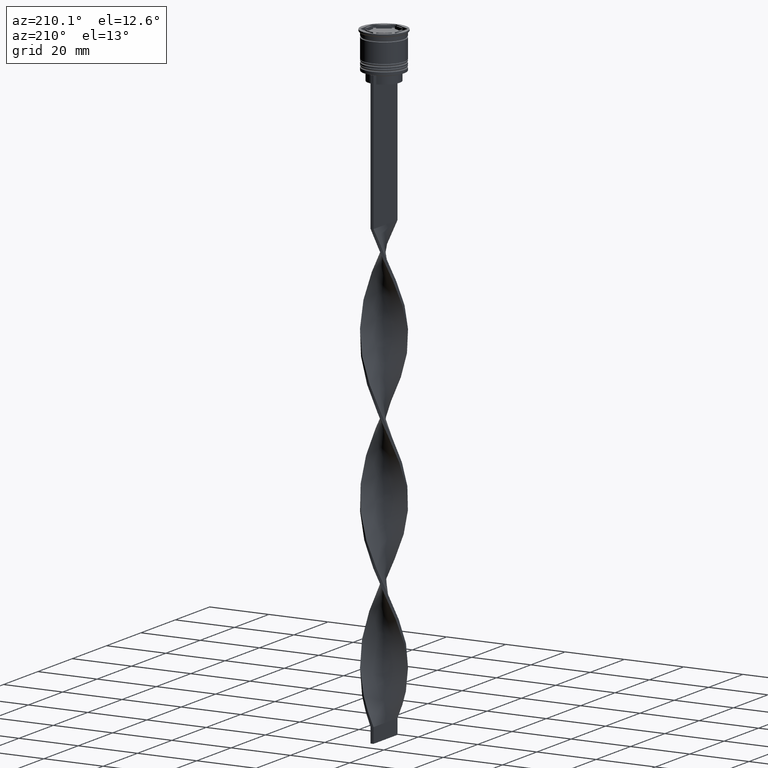
[diagram: clean part render]
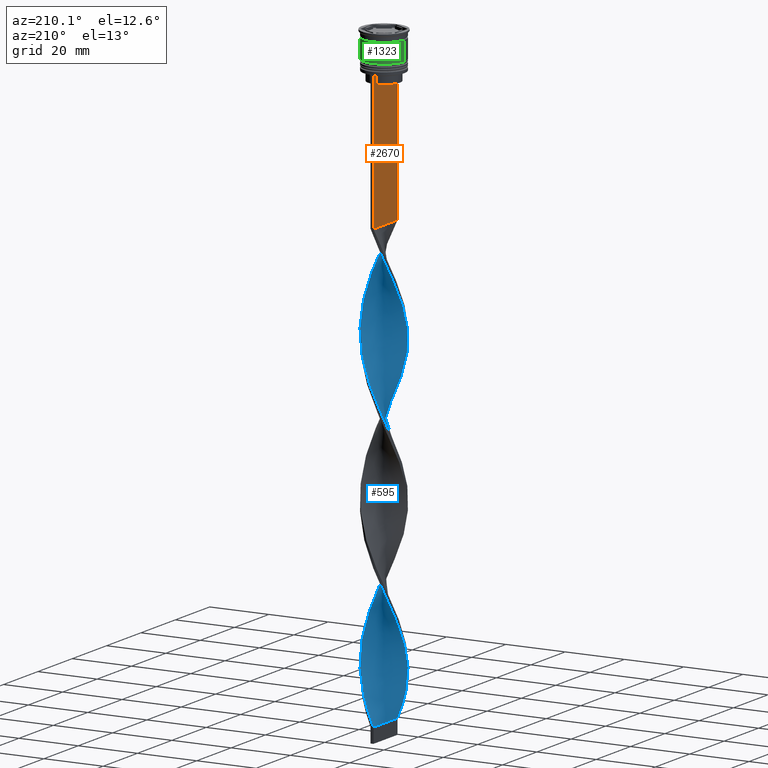
[diagram: same view with three faces highlighted in distinct colors, each labeled with its STEP entity id]
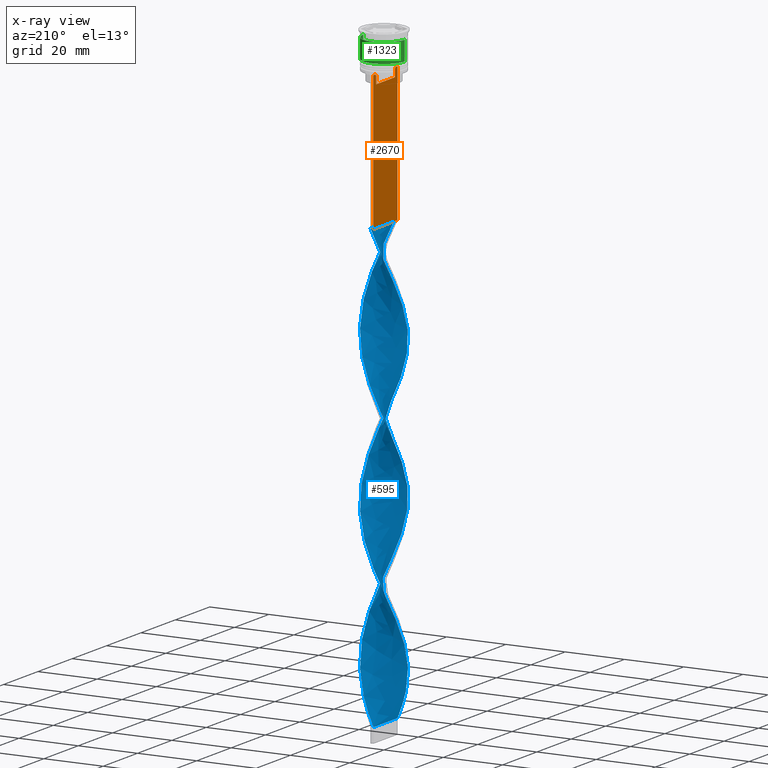
[diagram: x-ray of the same camera — body ghosted, the three highlighted faces saturated]
A machine part, auxiliary view with three faces highlighted in distinct colors.
The next image is the same camera in x-ray (body ghosted, the three faces saturated) — at least one of them is partly hidden behind the body in this view.
Their STEP definitions:

[orange] entity #2670 — the highlighted planar face has unit normal (-1, 0, 0).
#5 = VERTEX_POINT ( 'NONE', #324 ) ;
#35 = DIRECTION ( 'NONE',  ( 0.000000000000000000, -1.000000000000000000, 0.000000000000000000 ) ) ;
#157 = LINE ( 'NONE', #2244, #3776 ) ;
#160 = EDGE_CURVE ( 'NONE', #571, #2024, #1932, .T. ) ;
#200 = CARTESIAN_POINT ( 'NONE',  ( -0.5000000000000000000, 7.000000000000002665, 1.535668847618198329 ) ) ;
#212 = CARTESIAN_POINT ( 'NONE',  ( -0.5000000000000000000, 5.711478846560141598, -12.66669470477064685 ) ) ;
#227 = DIRECTION ( 'NONE',  ( -0.000000000000000000, -0.000000000000000000, 1.000000000000000000 ) ) ;
#240 = DIRECTION ( 'NONE',  ( 0.000000000000000000, 0.000000000000000000, -1.000000000000000000 ) ) ;
#252 = CARTESIAN_POINT ( 'NONE',  ( -0.5000000000000000000, 5.376802023508029826, -13.00000000000000178 ) ) ;
#263 = VECTOR ( 'NONE', #378, 1000.000000000000000 ) ;
#266 = VECTOR ( 'NONE', #967, 1000.000000000000000 ) ;
#324 = CARTESIAN_POINT ( 'NONE',  ( -0.5000000000000000000, -6.881860213634102053, -12.50000000000000000 ) ) ;
#339 = ORIENTED_EDGE ( 'NONE', *, *, #2539, .F. ) ;
#364 = CARTESIAN_POINT ( 'NONE',  ( -0.5000000000000000000, 5.376802023508029826, -15.50000000000000000 ) ) ;
#373 = EDGE_CURVE ( 'NONE', #1474, #5, #2917, .T. ) ;
#378 = DIRECTION ( 'NONE',  ( 0.000000000000000000, -1.000000000000000000, 0.000000000000000000 ) ) ;
#391 = VERTEX_POINT ( 'NONE', #1568 ) ;
#454 = VECTOR ( 'NONE', #2339, 1000.000000000000000 ) ;
#495 = DIRECTION ( 'NONE',  ( 0.000000000000000000, 0.000000000000000000, 1.000000000000000000 ) ) ;
#535 = ORIENTED_EDGE ( 'NONE', *, *, #1120, .F. ) ;
#538 = CARTESIAN_POINT ( 'NONE',  ( -0.5000000000000000000, 7.000000000000002665, -58.50000000000000000 ) ) ;
#553 = VERTEX_POINT ( 'NONE', #1690 ) ;
#571 = VERTEX_POINT ( 'NONE', #364 ) ;
#632 = VERTEX_POINT ( 'NONE', #2883 ) ;
#634 = VECTOR ( 'NONE', #2195, 1000.000000000000000 ) ;
#697 = VECTOR ( 'NONE', #832, 1000.000000000000000 ) ;
#783 = VERTEX_POINT ( 'NONE', #845 ) ;
#802 = ORIENTED_EDGE ( 'NONE', *, *, #3000, .T. ) ;
#832 = DIRECTION ( 'NONE',  ( 0.000000000000000000, 0.000000000000000000, -1.000000000000000000 ) ) ;
#845 = CARTESIAN_POINT ( 'NONE',  ( -0.5000000000000000000, -5.376802023508029826, -13.00000000000000178 ) ) ;
#886 = VECTOR ( 'NONE', #240, 1000.000000000000000 ) ;
#906 = VERTEX_POINT ( 'NONE', #1360 ) ;
#967 = DIRECTION ( 'NONE',  ( 0.000000000000000000, -1.000000000000000000, 0.000000000000000000 ) ) ;
#1050 = ORIENTED_EDGE ( 'NONE', *, *, #2321, .F. ) ;
#1120 = EDGE_CURVE ( 'NONE', #553, #571, #2978, .T. ) ;
#1145 = LINE ( 'NONE', #1700, #697 ) ;
#1229 = LINE ( 'NONE', #3319, #634 ) ;
#1255 = ORIENTED_EDGE ( 'NONE', *, *, #160, .F. ) ;
#1338 = B_SPLINE_CURVE_WITH_KNOTS ( 'NONE', 3,
 ( #2934, #1411, #1974, #2347 ),
 .UNSPECIFIED., .F., .F.,
 ( 4, 4 ),
 ( 0.02539176325380714666, 0.02610162431828674801 ),
 .UNSPECIFIED. ) ;
#1358 = EDGE_LOOP ( 'NONE', ( #1755, #1050, #2089, #802, #2921, #3114, #2586, #3629, #1380, #339, #1255, #535 ) ) ;
#1360 = CARTESIAN_POINT ( 'NONE',  ( -0.5000000000000000000, 5.878775382679629402, -12.50000000000000000 ) ) ;
#1380 = ORIENTED_EDGE ( 'NONE', *, *, #3005, .F. ) ;
#1389 = PLANE ( 'NONE',  #2581 ) ;
#1403 = EDGE_CURVE ( 'NONE', #3816, #2833, #1229, .T. ) ;
#1411 = CARTESIAN_POINT ( 'NONE',  ( -0.5000000000000000000, -5.544156999454441959, -12.83336396790503642 ) ) ;
#1474 = VERTEX_POINT ( 'NONE', #1655 ) ;
#1568 = CARTESIAN_POINT ( 'NONE',  ( -0.5000000000000000000, -6.999999999999997335, -58.50000000000000000 ) ) ;
#1573 = VECTOR ( 'NONE', #35, 1000.000000000000000 ) ;
#1655 = CARTESIAN_POINT ( 'NONE',  ( -0.5000000000000000000, -5.878775382679629402, -12.50000000000000000 ) ) ;
#1669 = CARTESIAN_POINT ( 'NONE',  ( -0.5000000000000000000, -5.376802023508029826, -15.50000000000000000 ) ) ;
#1683 = FACE_OUTER_BOUND ( 'NONE', #1358, .T. ) ;
#1690 = CARTESIAN_POINT ( 'NONE',  ( -0.5000000000000000000, 5.376802023508029826, -13.00000000000000178 ) ) ;
#1700 = CARTESIAN_POINT ( 'NONE',  ( -0.5000000000000000000, -6.999999999999997335, 1.535668847618198329 ) ) ;
#1747 = EDGE_CURVE ( 'NONE', #5, #632, #2544, .T. ) ;
#1755 = ORIENTED_EDGE ( 'NONE', *, *, #2066, .F. ) ;
#1848 = VECTOR ( 'NONE', #2053, 1000.000000000000000 ) ;
#1932 = LINE ( 'NONE', #3090, #2388 ) ;
#1974 = CARTESIAN_POINT ( 'NONE',  ( -0.5000000000000000000, -5.711478856069293286, -12.66669469529570335 ) ) ;
#1996 = CARTESIAN_POINT ( 'NONE',  ( -0.5000000000000000000, 7.000000000000002665, -12.50000000000000000 ) ) ;
#1998 = CARTESIAN_POINT ( 'NONE',  ( -0.5000000000000000000, -6.999999999999997335, 1.535668847618198329 ) ) ;
#2024 = VERTEX_POINT ( 'NONE', #1669 ) ;
#2053 = DIRECTION ( 'NONE',  ( 0.000000000000000000, 0.000000000000000000, -1.000000000000000000 ) ) ;
#2066 = EDGE_CURVE ( 'NONE', #906, #553, #3753, .T. ) ;
#2089 = ORIENTED_EDGE ( 'NONE', *, *, #1403, .F. ) ;
#2153 = CARTESIAN_POINT ( 'NONE',  ( -0.5000000000000000000, -6.999999999999997335, -12.50000000000000000 ) ) ;
#2195 = DIRECTION ( 'NONE',  ( 0.000000000000000000, -1.000000000000000000, 0.000000000000000000 ) ) ;
#2207 = LINE ( 'NONE', #2153, #266 ) ;
#2244 = CARTESIAN_POINT ( 'NONE',  ( -0.5000000000000000000, -5.376802023508029826, 0.000000000000000000 ) ) ;
#2321 = EDGE_CURVE ( 'NONE', #2833, #906, #2207, .T. ) ;
#2339 = DIRECTION ( 'NONE',  ( 0.000000000000000000, 1.000000000000000000, 0.000000000000000000 ) ) ;
#2347 = CARTESIAN_POINT ( 'NONE',  ( -0.5000000000000000000, -5.878775382679629402, -12.50000000000000000 ) ) ;
#2388 = VECTOR ( 'NONE', #3067, 1000.000000000000000 ) ;
#2483 = CARTESIAN_POINT ( 'NONE',  ( -0.5000000000000000000, -6.999999999999997335, -12.50000000000000000 ) ) ;
#2539 = EDGE_CURVE ( 'NONE', #2024, #783, #157, .T. ) ;
#2544 = LINE ( 'NONE', #2483, #263 ) ;
#2581 = AXIS2_PLACEMENT_3D ( 'NONE', #1998, #3187, #495 ) ;
#2586 = ORIENTED_EDGE ( 'NONE', *, *, #1747, .F. ) ;
#2670 = ADVANCED_FACE ( 'NONE', ( #1683 ), #1389, .T. ) ;
#2833 = VERTEX_POINT ( 'NONE', #3350 ) ;
#2868 = LINE ( 'NONE', #200, #1848 ) ;
#2883 = CARTESIAN_POINT ( 'NONE',  ( -0.5000000000000000000, -6.999999999999997335, -12.50000000000000000 ) ) ;
#2904 = CARTESIAN_POINT ( 'NONE',  ( -0.5000000000000000000, 5.878775382679629402, -12.50000000000000000 ) ) ;
#2917 = LINE ( 'NONE', #3381, #1573 ) ;
#2921 = ORIENTED_EDGE ( 'NONE', *, *, #3581, .F. ) ;
#2925 = CARTESIAN_POINT ( 'NONE',  ( -0.5000000000000000000, 5.544156989057553275, -12.83336397825725861 ) ) ;
#2934 = CARTESIAN_POINT ( 'NONE',  ( -0.5000000000000000000, -5.376802023508029826, -13.00000000000000178 ) ) ;
#2958 = EDGE_CURVE ( 'NONE', #632, #391, #1145, .T. ) ;
#2969 = VERTEX_POINT ( 'NONE', #538 ) ;
#2978 = LINE ( 'NONE', #3248, #886 ) ;
#3000 = EDGE_CURVE ( 'NONE', #3816, #2969, #2868, .T. ) ;
#3005 = EDGE_CURVE ( 'NONE', #783, #1474, #1338, .T. ) ;
#3067 = DIRECTION ( 'NONE',  ( 0.000000000000000000, -1.000000000000000000, 0.000000000000000000 ) ) ;
#3090 = CARTESIAN_POINT ( 'NONE',  ( -0.5000000000000000000, 5.400000000000003908, -15.50000000000000000 ) ) ;
#3114 = ORIENTED_EDGE ( 'NONE', *, *, #2958, .F. ) ;
#3187 = DIRECTION ( 'NONE',  ( -1.000000000000000000, 0.000000000000000000, 0.000000000000000000 ) ) ;
#3223 = LINE ( 'NONE', #3858, #454 ) ;
#3248 = CARTESIAN_POINT ( 'NONE',  ( -0.5000000000000000000, 5.376802023508029826, 0.000000000000000000 ) ) ;
#3319 = CARTESIAN_POINT ( 'NONE',  ( -0.5000000000000000000, -6.999999999999997335, -12.50000000000000000 ) ) ;
#3350 = CARTESIAN_POINT ( 'NONE',  ( -0.5000000000000000000, 6.881860213634102053, -12.50000000000000000 ) ) ;
#3381 = CARTESIAN_POINT ( 'NONE',  ( -0.5000000000000000000, -6.999999999999997335, -12.50000000000000000 ) ) ;
#3581 = EDGE_CURVE ( 'NONE', #391, #2969, #3223, .T. ) ;
#3629 = ORIENTED_EDGE ( 'NONE', *, *, #373, .F. ) ;
#3753 = B_SPLINE_CURVE_WITH_KNOTS ( 'NONE', 3,
 ( #2904, #212, #2925, #252 ),
 .UNSPECIFIED., .F., .F.,
 ( 4, 4 ),
 ( 0.01003009312103698807, 0.01073859663834952557 ),
 .UNSPECIFIED. ) ;
#3776 = VECTOR ( 'NONE', #227, 1000.000000000000000 ) ;
#3816 = VERTEX_POINT ( 'NONE', #1996 ) ;
#3858 = CARTESIAN_POINT ( 'NONE',  ( -0.5000000000000000000, -6.999999999999997335, -58.50000000000000000 ) ) ;

[blue] entity #595 — the highlighted face is a freeform B-spline surface patch.
#14 = CARTESIAN_POINT ( 'NONE',  ( -6.924005054333592923, 1.143745604390631554, -181.2058823529411598 ) ) ;
#19 = CARTESIAN_POINT ( 'NONE',  ( 4.346365046915572350, -5.509910242367894284, -119.8529411764705799 ) ) ;
#33 = CARTESIAN_POINT ( 'NONE',  ( 6.736663859307490121, 2.071291312187309774, -138.8431372549019045 ) ) ;
#36 = CARTESIAN_POINT ( 'NONE',  ( -4.110133708006299180, -5.688303868668623586, -198.7352941176470722 ) ) ;
#48 = CARTESIAN_POINT ( 'NONE',  ( 2.994927778012250297, 6.346684772736916891, -151.9901960784313530 ) ) ;
#51 = CARTESIAN_POINT ( 'NONE',  ( -2.994927778012249409, -6.346684772736916891, -201.6568627450980387 ) ) ;
#54 = CARTESIAN_POINT ( 'NONE',  ( 6.869610997245771955, -1.434728108918169154, -178.2843137254901933 ) ) ;
#84 = CARTESIAN_POINT ( 'NONE',  ( 2.406820825421677412, -6.624205700879067571, -162.2156862745098351 ) ) ;
#100 = CARTESIAN_POINT ( 'NONE',  ( 6.043273861597165286, 3.567750136113297277, -189.9705882352941160 ) ) ;
#105 = CARTESIAN_POINT ( 'NONE',  ( 0.5000000000000000000, 7.000000000000002665, -58.50000000000000000 ) ) ;
#107 = CARTESIAN_POINT ( 'NONE',  ( 6.043273861597165286, 3.567750136113297277, -189.9705882352941160 ) ) ;
#122 = CARTESIAN_POINT ( 'NONE',  ( -2.062455548607893263, 6.707926438924069146, -64.34313725490196134 ) ) ;
#125 = CARTESIAN_POINT ( 'NONE',  ( 7.016273413796890068, -0.1480114280955966977, -181.2058823529411598 ) ) ;
#159 = CARTESIAN_POINT ( 'NONE',  ( 6.595948007173689120, 2.396553752090988976, -187.0490196078431211 ) ) ;
#163 = CARTESIAN_POINT ( 'NONE',  ( 6.043273861597165286, 3.567750136113297277, -90.63725490196078738 ) ) ;
#167 = CARTESIAN_POINT ( 'NONE',  ( -6.241360575439927061, -3.273882377329165649, -92.09803921568628482 ) ) ;
#172 = CARTESIAN_POINT ( 'NONE',  ( 0.7947600748740405452, -6.972686456695599944, -111.0882352941176379 ) ) ;
#186 = CARTESIAN_POINT ( 'NONE',  ( -1.777733174557944107, -6.788936938879031047, -204.5784313725490335 ) ) ;
#194 = CARTESIAN_POINT ( 'NONE',  ( -6.373874598089927623, 3.007758344858555866, -77.49019607843136725 ) ) ;
#201 = CARTESIAN_POINT ( 'NONE',  ( 3.583034730602818296, -6.069163844594756441, -65.80392156862745878 ) ) ;
#209 = CARTESIAN_POINT ( 'NONE',  ( 4.637232685409776067, -5.307443892742482738, -68.72549019607842524 ) ) ;
#213 = CARTESIAN_POINT ( 'NONE',  ( -6.595948007173694450, 2.396553752090989864, -78.95098039215686470 ) ) ;
#219 = CARTESIAN_POINT ( 'NONE',  ( -2.062455548607893263, 6.707926438924069146, -64.34313725490196134 ) ) ;
#230 = CARTESIAN_POINT ( 'NONE',  ( -6.818021416257458611, -1.785349159323426305, -135.9215686274509665 ) ) ;
#237 = CARTESIAN_POINT ( 'NONE',  ( -2.994927778012249409, -6.346684772736916891, -102.3235294117646959 ) ) ;
#243 = CARTESIAN_POINT ( 'NONE',  ( 7.016273413796890068, -0.1480114280955966977, -81.87254901960783116 ) ) ;
#265 = CARTESIAN_POINT ( 'NONE',  ( -1.777733174557940998, 6.788936938879025718, -111.0882352941176379 ) ) ;
#270 = CARTESIAN_POINT ( 'NONE',  ( -5.533515242862683259, 4.364985304700184088, -121.3137254901960631 ) ) ;
#278 = CARTESIAN_POINT ( 'NONE',  ( -5.887437909151307380, -3.819433841014676201, -192.8921568627450824 ) ) ;
#285 = CARTESIAN_POINT ( 'NONE',  ( -7.002558135184063559, 0.7981649056490275340, -130.0784313725490335 ) ) ;
#290 = CARTESIAN_POINT ( 'NONE',  ( -5.712673125104408278, -4.127741927368044905, -141.7647058823529562 ) ) ;
#295 = CARTESIAN_POINT ( 'NONE',  ( 4.346365046915572350, -5.509910242367894284, -119.8529411764705799 ) ) ;
#297 = CARTESIAN_POINT ( 'NONE',  ( 7.029988692409724571, -0.5021420494578385796, -133.0000000000000000 ) ) ;
#310 = CARTESIAN_POINT ( 'NONE',  ( -1.777733174557944107, -6.788936938879031047, -105.2450980392156765 ) ) ;
#313 = CARTESIAN_POINT ( 'NONE',  ( -1.777733174557944107, -6.788936938879031047, -204.5784313725490335 ) ) ;
#328 = CARTESIAN_POINT ( 'NONE',  ( 7.002558135184068000, 0.7981649056490325300, -135.9215686274509665 ) ) ;
#331 = CARTESIAN_POINT ( 'NONE',  ( 1.148645523694208581, 6.953668176878989193, -156.3725490196078454 ) ) ;
#346 = CARTESIAN_POINT ( 'NONE',  ( 1.148645523694208581, 6.953668176878989193, -156.3725490196078454 ) ) ;
#350 = CARTESIAN_POINT ( 'NONE',  ( 0.5000000000000000000, 7.000000000000002665, -157.8333333333333144 ) ) ;
#353 = CARTESIAN_POINT ( 'NONE',  ( 2.684036471161911575, 6.516811787577952764, -200.1960784313725981 ) ) ;
#383 = CARTESIAN_POINT ( 'NONE',  ( 0.1486455236942071378, 7.046331823121014359, -206.0392156862745026 ) ) ;
#395 = CARTESIAN_POINT ( 'NONE',  ( 1.777733174557942775, -6.788936938879025718, -160.7549019607842808 ) ) ;
#402 = CARTESIAN_POINT ( 'NONE',  ( 1.440874626053875396, 6.899041090270179311, -203.1176470588235361 ) ) ;
#409 = CARTESIAN_POINT ( 'NONE',  ( 6.373874598089922294, 3.007758344858553201, -188.5098039215686185 ) ) ;
#430 = CARTESIAN_POINT ( 'NONE',  ( 3.583034730602818296, -6.069163844594756441, -165.1372549019608016 ) ) ;
#434 = CARTESIAN_POINT ( 'NONE',  ( 7.029988692409719242, 0.5021420494578368032, -83.33333333333332860 ) ) ;
#458 = CARTESIAN_POINT ( 'NONE',  ( 2.994927778012247632, -6.346684772736912450, -163.6764705882352757 ) ) ;
#461 = CARTESIAN_POINT ( 'NONE',  ( -2.994927778012248520, 6.346684772736911562, -114.0098039215686185 ) ) ;
#469 = CARTESIAN_POINT ( 'NONE',  ( -3.259916572276684299, 6.214736031545979422, -67.26470588235292780 ) ) ;
#478 = CARTESIAN_POINT ( 'NONE',  ( 3.259916572276681634, 6.214736031545974981, -198.7352941176470722 ) ) ;
#481 = CARTESIAN_POINT ( 'NONE',  ( 6.241360575439922620, -3.273882377329162985, -74.56862745098038658 ) ) ;
#491 = CARTESIAN_POINT ( 'NONE',  ( 5.085373964136229219, -4.836214598721332969, -70.18627450980390847 ) ) ;
#499 = CARTESIAN_POINT ( 'NONE',  ( 7.016273413796890068, -0.1480114280955966977, -81.87254901960783116 ) ) ;
#504 = CARTESIAN_POINT ( 'NONE',  ( -4.637232685409779620, -5.307443892742487179, -97.94117647058824616 ) ) ;
#517 = CARTESIAN_POINT ( 'NONE',  ( -0.4999999999999991673, 6.999999999999997335, -108.1666666666666572 ) ) ;
#526 = CARTESIAN_POINT ( 'NONE',  ( 1.148645523694208137, -6.953668176878982088, -159.2941176470588118 ) ) ;
#534 = CARTESIAN_POINT ( 'NONE',  ( -5.533515242862685923, -4.364985304700188529, -95.01960784313726549 ) ) ;
#539 = CARTESIAN_POINT ( 'NONE',  ( 3.835796673391455247, 5.912660275513998975, -97.94117647058824616 ) ) ;
#545 = CARTESIAN_POINT ( 'NONE',  ( 5.533515242862682371, -4.364985304700184976, -170.9803921568627629 ) ) ;
#556 = CARTESIAN_POINT ( 'NONE',  ( 0.7947600748740411003, 6.972686456695594615, -105.2450980392156765 ) ) ;
#563 = CARTESIAN_POINT ( 'NONE',  ( -6.043273861597169727, 3.567750136113300385, -175.3627450980391984 ) ) ;
#567 = CARTESIAN_POINT ( 'NONE',  ( -0.1486455236942086366, 7.046331823121017912, -159.2941176470588118 ) ) ;
#583 = CARTESIAN_POINT ( 'NONE',  ( 2.406820825421677412, -6.624205700879066683, -162.2156862745098351 ) ) ;
#588 = CARTESIAN_POINT ( 'NONE',  ( 3.835796673391457468, -5.912660275514004304, -118.3921568627451109 ) ) ;
#591 = CARTESIAN_POINT ( 'NONE',  ( -3.583034730602821405, -6.069163844594760882, -200.1960784313725696 ) ) ;
#592 = ORIENTED_EDGE ( 'NONE', *, *, #3830, .T. ) ;
#595 = ADVANCED_FACE ( 'NONE', ( #1885 ), #1860, .T. ) ;
#597 = CARTESIAN_POINT ( 'NONE',  ( -6.736663859307483904, 2.071291312187310663, -127.1568627450980244 ) ) ;
#609 = CARTESIAN_POINT ( 'NONE',  ( 6.489012217373707259, 2.672586844758239710, -140.3039215686274588 ) ) ;
#614 = VERTEX_POINT ( 'NONE', #731 ) ;
#620 = CARTESIAN_POINT ( 'NONE',  ( -6.373874598089927623, 3.007758344858555866, -176.8235294117647243 ) ) ;
#624 = CARTESIAN_POINT ( 'NONE',  ( 1.777733174557941886, 6.788936938879031047, -154.9117647058823479 ) ) ;
#639 = CARTESIAN_POINT ( 'NONE',  ( 7.029988692409723683, -0.5021420494578385796, -133.0000000000000000 ) ) ;
#645 = CARTESIAN_POINT ( 'NONE',  ( 6.924005054333593812, -1.143745604390631110, -131.5392156862745310 ) ) ;
#688 = CARTESIAN_POINT ( 'NONE',  ( -3.259916572276685187, -6.214736031545972317, -149.0686274509803866 ) ) ;
#711 = CARTESIAN_POINT ( 'NONE',  ( 5.533515242862682371, -4.364985304700184976, -71.64705882352943433 ) ) ;
#724 = CARTESIAN_POINT ( 'NONE',  ( -1.440874626053876062, -6.899041090270178422, -153.4509803921568789 ) ) ;
#727 = CARTESIAN_POINT ( 'NONE',  ( 2.062455548607891487, 6.707926438924064705, -102.3235294117646959 ) ) ;
#729 = CARTESIAN_POINT ( 'NONE',  ( -0.1486455236942086366, 7.046331823121017912, -59.96078431372549744 ) ) ;
#731 = CARTESIAN_POINT ( 'NONE',  ( 0.5000000000000000000, 7.000000000000002665, -58.50000000000000000 ) ) ;
#737 = CARTESIAN_POINT ( 'NONE',  ( -6.736663859307489233, -2.071291312187311551, -188.5098039215686185 ) ) ;
#744 = CARTESIAN_POINT ( 'NONE',  ( 4.110133708006296516, -5.688303868668619145, -166.5980392156862706 ) ) ;
#747 = CARTESIAN_POINT ( 'NONE',  ( -1.777733174557940998, 6.788936938879025718, -111.0882352941176379 ) ) ;
#753 = CARTESIAN_POINT ( 'NONE',  ( -6.373874598089927623, 3.007758344858555866, -77.49019607843138147 ) ) ;
#772 = CARTESIAN_POINT ( 'NONE',  ( -4.856933420439682791, -5.107160209221785152, -144.6862745098039227 ) ) ;
#778 = CARTESIAN_POINT ( 'NONE',  ( -6.869610997245777284, -1.434728108918171596, -87.71568627450979250 ) ) ;
#781 = CARTESIAN_POINT ( 'NONE',  ( 2.684036471161912019, -6.516811787577958981, -115.4705882352941018 ) ) ;
#786 = CARTESIAN_POINT ( 'NONE',  ( 0.1486455236942071378, 7.046331823121014359, -106.7058823529411882 ) ) ;
#801 = CARTESIAN_POINT ( 'NONE',  ( -6.595948007173694450, 2.396553752090989864, -78.95098039215686470 ) ) ;
#806 = CARTESIAN_POINT ( 'NONE',  ( 5.533515242862682371, -4.364985304700184976, -71.64705882352942012 ) ) ;
#813 = CARTESIAN_POINT ( 'NONE',  ( 0.5000000000000000000, -6.999999999999997335, -157.8333333333333144 ) ) ;
#824 = CARTESIAN_POINT ( 'NONE',  ( -5.085373964136233660, -4.836214598721335634, -96.48039215686274872 ) ) ;
#838 = CARTESIAN_POINT ( 'NONE',  ( -0.1486455236942079983, -7.046331823121014359, -156.3725490196078454 ) ) ;
#842 = CARTESIAN_POINT ( 'NONE',  ( -7.002558135184068000, -0.7981649056490316418, -86.25490196078432348 ) ) ;
#851 = CARTESIAN_POINT ( 'NONE',  ( 0.5000000000000000000, -6.999999999999997335, -58.50000000000000000 ) ) ;
#859 = CARTESIAN_POINT ( 'NONE',  ( -4.346365046915572350, 5.509910242367894284, -169.5196078431372371 ) ) ;
#874 = CARTESIAN_POINT ( 'NONE',  ( -1.440874626053876062, -6.899041090270178422, -153.4509803921568789 ) ) ;
#878 = CARTESIAN_POINT ( 'NONE',  ( -0.7947600748740419885, 6.972686456695599944, -160.7549019607842808 ) ) ;
#883 = CARTESIAN_POINT ( 'NONE',  ( -0.7947600748740419885, 6.972686456695599944, -160.7549019607842808 ) ) ;
#892 = CARTESIAN_POINT ( 'NONE',  ( -5.085373964136229219, 4.836214598721332969, -119.8529411764705799 ) ) ;
#902 = CARTESIAN_POINT ( 'NONE',  ( 6.043273861597170615, -3.567750136113298609, -125.6960784313725412 ) ) ;
#904 = CARTESIAN_POINT ( 'NONE',  ( -6.595948007173694450, 2.396553752090989864, -178.2843137254901933 ) ) ;
#916 = CARTESIAN_POINT ( 'NONE',  ( -7.016273413796896286, -0.1480114280955961703, -184.1274509803921546 ) ) ;
#918 = CARTESIAN_POINT ( 'NONE',  ( -5.284803272772050420, 4.617451068294916361, -172.4411764705882035 ) ) ;
#921 = CARTESIAN_POINT ( 'NONE',  ( -0.4999999999999996669, 2.333333333333331261, -207.5000000000000000 ) ) ;
#933 = CARTESIAN_POINT ( 'NONE',  ( 3.259916572276685187, -6.214736031545978534, -116.9313725490195992 ) ) ;
#935 = CARTESIAN_POINT ( 'NONE',  ( 5.887437909151308268, 3.819433841014675313, -143.2254901960784537 ) ) ;
#950 = CARTESIAN_POINT ( 'NONE',  ( -6.489012217373707259, -2.672586844758237490, -189.9705882352941160 ) ) ;
#974 = CARTESIAN_POINT ( 'NONE',  ( 0.7947600748740411003, 6.972686456695594615, -204.5784313725490335 ) ) ;
#981 = ORIENTED_EDGE ( 'NONE', *, *, #1395, .F. ) ;
#985 = CARTESIAN_POINT ( 'NONE',  ( -0.4999999999999991673, 6.999999999999997335, -207.5000000000000000 ) ) ;
#1004 = CARTESIAN_POINT ( 'NONE',  ( 2.684036471161911575, 6.516811787577952764, -200.1960784313725696 ) ) ;
#1018 = CARTESIAN_POINT ( 'NONE',  ( -3.583034730602820961, -6.069163844594760882, -200.1960784313725981 ) ) ;
#1023 = CARTESIAN_POINT ( 'NONE',  ( -6.595948007173689120, -2.396553752090988088, -137.3823529411764639 ) ) ;
#1025 = CARTESIAN_POINT ( 'NONE',  ( 4.110133708006296516, -5.688303868668619145, -67.26470588235292780 ) ) ;
#1029 = CARTESIAN_POINT ( 'NONE',  ( -0.4999999999999991673, 6.999999999999997335, -207.5000000000000000 ) ) ;
#1031 = B_SPLINE_CURVE_WITH_KNOTS ( 'NONE', 3,
 ( #2419, #3613, #921, #2127 ),
 .UNSPECIFIED., .F., .F.,
 ( 4, 4 ),
 ( 0.000000000000000000, 1.000000000000000000 ),
 .UNSPECIFIED. ) ;
#1034 =( BOUNDED_CURVE ( )  B_SPLINE_CURVE ( 2, ( #2910, #1721, #2864, #3488, #219, #1429, #469, #1464, #2341, #2031, #1381, #2612, #2050, #194, #801, #2302, #1114, #2948, #2285, #3508, #2569, #1739, #2653, #2317, #2362, #534, #824, #3227, #1697, #2929, #237, #3469, #3860, #3555, #1445, #3162, #172, #3771, #1138, #781, #2885, #1990, #19, #2674, #2065, #2432, #2416, #2730, #1240, #1183, #645, #297, #3894, #1523, #3877, #1504, #609, #1832, #935, #3024, #1200, #2140, #2398, #2378, #1819, #3047, #624, #331, #350, #567, #883, #3571, #3625, #3333, #3265, #3610, #3317, #2086, #918, #1542, #1783, #2124, #904, #3592, #1855, #2746, #2991, #2108, #2973, #2690, #1253, #1557, #278, #3006, #1225, #3287, #36, #591, #51, #3303, #313, #2446, #3644 ),
 .UNSPECIFIED., .F., .T. ) 
 B_SPLINE_CURVE_WITH_KNOTS ( ( 3, 2, 2, 2, 2, 2, 2, 2, 2, 2, 2, 2, 2, 2, 2, 2, 2, 2, 2, 2, 2, 2, 2, 2, 2, 2, 2, 2, 2, 2, 2, 2, 2, 2, 2, 2, 2, 2, 2, 2, 2, 2, 2, 2, 2, 2, 2, 2, 2, 2, 2, 3 ),
 ( 0.000000000000000000, 0.01470588235294117453, 0.02941176470588234906, 0.04411764705882353227, 0.05882352941176469813, 0.07352941176470588480, 0.08823529411764706454, 0.1029411764705882443, 0.1176470588235293963, 0.1323529411764705899, 0.1470588235294117696, 0.1617647058823529493, 0.1764705882352941291, 0.1911764705882352811, 0.2058823529411764885, 0.2205882352941176405, 0.2352941176470587925, 0.2500000000000000000, 0.2647058823529411797, 0.2794117647058823595, 0.2941176470588235392, 0.3088235294117647189, 0.3235294117647058987, 0.3382352941176470229, 0.3529411764705882582, 0.3676470588235294379, 0.3823529411764705621, 0.3970588235294117418, 0.4117647058823529771, 0.4264705882352941013, 0.4411764705882352811, 0.4558823529411764608, 0.4705882352941175850, 0.4852941176470588203, 0.5000000000000000000, 0.5147058823529411242, 0.5294117647058823595, 0.5441176470588234837, 0.5588235294117647189, 0.5735294117647058432, 0.5882352941176470784, 0.6029411764705882026, 0.6176470588235294379, 0.6323529411764705621, 0.6470588235294117974, 0.6617647058823529216, 0.6764705882352940458, 0.6911764705882351700, 0.7058823529411765163, 0.7205882352941176405, 0.7352941176470588758, 0.7500000000000000000 ),
 .UNSPECIFIED. ) 
 CURVE ( )  GEOMETRIC_REPRESENTATION_ITEM ( )  RATIONAL_B_SPLINE_CURVE ( ( 1.000000000000000000, 0.9957341762950344677, 1.000000000000000000, 0.9957341762950344677, 1.000000000000000000, 0.9957341762950344677, 1.000000000000000000, 0.9957341762950344677, 1.000000000000000000, 0.9957341762950344677, 1.000000000000000000, 0.9957341762950344677, 1.000000000000000000, 0.9957341762950344677, 1.000000000000000000, 0.9957341762950344677, 1.000000000000000000, 0.9957341762950344677, 1.000000000000000000, 0.9957341762950344677, 1.000000000000000000, 0.9957341762950344677, 1.000000000000000000, 0.9957341762950344677, 1.000000000000000000, 0.9957341762950344677, 1.000000000000000000, 0.9957341762950344677, 1.000000000000000000, 0.9957341762950344677, 1.000000000000000000, 0.9957341762950344677, 1.000000000000000000, 0.9957341762950344677, 1.000000000000000000, 0.9957341762950344677, 1.000000000000000000, 0.9957341762950344677, 1.000000000000000000, 0.9957341762950344677, 1.000000000000000000, 0.9957341762950344677, 1.000000000000000000, 0.9957341762950344677, 1.000000000000000000, 0.9957341762950344677, 1.000000000000000000, 0.9957341762950344677, 1.000000000000000000, 0.9957341762950344677, 1.000000000000000000, 0.9957341762950344677, 1.000000000000000000, 0.9957341762950344677, 1.000000000000000000, 0.9957341762950344677, 1.000000000000000000, 0.9957341762950344677, 1.000000000000000000, 0.9957341762950344677, 1.000000000000000000, 0.9957341762950344677, 1.000000000000000000, 0.9957341762950344677, 1.000000000000000000, 0.9957341762950344677, 1.000000000000000000, 0.9957341762950344677, 1.000000000000000000, 0.9957341762950344677, 1.000000000000000000, 0.9957341762950344677, 1.000000000000000000, 0.9957341762950344677, 1.000000000000000000, 0.9957341762950344677, 1.000000000000000000, 0.9957341762950344677, 1.000000000000000000, 0.9957341762950344677, 1.000000000000000000, 0.9957341762950344677, 1.000000000000000000, 0.9957341762950344677, 1.000000000000000000, 0.9957341762950344677, 1.000000000000000000, 0.9957341762950344677, 1.000000000000000000, 0.9957341762950344677, 1.000000000000000000, 0.9957341762950344677, 1.000000000000000000, 0.9957341762950344677, 1.000000000000000000, 0.9957341762950344677, 1.000000000000000000, 0.9957341762950344677, 1.000000000000000000, 0.9957341762950344677, 1.000000000000000000, 0.9957341762950344677, 1.000000000000000000 ) ) 
 REPRESENTATION_ITEM ( '' )  );
#1042 = CARTESIAN_POINT ( 'NONE',  ( 4.346365046915569685, 5.509910242367890731, -195.8137254901960773 ) ) ;
#1045 = CARTESIAN_POINT ( 'NONE',  ( 0.7947600748740411003, 6.972686456695594615, -105.2450980392156765 ) ) ;
#1049 = CARTESIAN_POINT ( 'NONE',  ( -3.259916572276684299, 6.214736031545979422, -67.26470588235292780 ) ) ;
#1057 = CARTESIAN_POINT ( 'NONE',  ( -5.533515242862685035, -4.364985304700188529, -194.3529411764705799 ) ) ;
#1063 = CARTESIAN_POINT ( 'NONE',  ( 7.002558135184063559, -0.7981649056490300875, -179.7450980392157476 ) ) ;
#1069 = CARTESIAN_POINT ( 'NONE',  ( -5.533515242862685035, -4.364985304700188529, -95.01960784313725128 ) ) ;
#1090 = CARTESIAN_POINT ( 'NONE',  ( 5.284803272772047755, 4.617451068294911920, -93.55882352941176805 ) ) ;
#1101 = CARTESIAN_POINT ( 'NONE',  ( -2.994927778012249409, -6.346684772736916891, -201.6568627450980387 ) ) ;
#1103 = CARTESIAN_POINT ( 'NONE',  ( 6.869610997245771955, -1.434728108918169154, -78.95098039215686470 ) ) ;
#1109 = CARTESIAN_POINT ( 'NONE',  ( 5.887437909151302939, -3.819433841014673536, -73.10784313725488914 ) ) ;
#1111 = CARTESIAN_POINT ( 'NONE',  ( -7.016273413796896286, -0.1480114280955961703, -84.79411764705882604 ) ) ;
#1114 = CARTESIAN_POINT ( 'NONE',  ( -6.924005054333592923, 1.143745604390631554, -81.87254901960783116 ) ) ;
#1128 = CARTESIAN_POINT ( 'NONE',  ( -7.016273413796890956, 0.1480114280955958372, -131.5392156862745310 ) ) ;
#1133 = CARTESIAN_POINT ( 'NONE',  ( -5.712673125104412719, 4.127741927368047570, -74.56862745098038658 ) ) ;
#1138 = CARTESIAN_POINT ( 'NONE',  ( 2.062455548607894595, -6.707926438924068258, -114.0098039215686185 ) ) ;
#1146 = CARTESIAN_POINT ( 'NONE',  ( 3.259916572276681634, 6.214736031545974981, -99.40196078431372939 ) ) ;
#1156 = CARTESIAN_POINT ( 'NONE',  ( -7.029988692409719242, -0.5021420494578359150, -133.0000000000000000 ) ) ;
#1169 = CARTESIAN_POINT ( 'NONE',  ( 2.994927778012247632, -6.346684772736912450, -64.34313725490196134 ) ) ;
#1175 = CARTESIAN_POINT ( 'NONE',  ( -6.373874598089923182, -3.007758344858550981, -138.8431372549019045 ) ) ;
#1176 =( BOUNDED_CURVE ( )  B_SPLINE_CURVE ( 2, ( #851, #3865, #3494, #3801, #1169, #201, #3560, #2054, #491, #806, #3232, #1792, #2072, #1412, #1103, #1450, #243, #3272, #3250, #3185, #2982, #3207, #2573, #2599, #2307, #2012, #3843, #539, #1146, #3473, #1727, #2348, #556, #786, #517, #1769, #265, #1473, #3578, #3293, #3883, #1494, #892, #1809, #2680, #1189, #2385, #597, #2096, #285, #2515, #3170, #1348, #3717, #1023, #1303, #2228, #3412, #1899, #772, #1664, #1685, #688, #2246, #1287, #724, #1369, #3093, #2559, #1934, #395, #84, #458, #430, #744, #3149, #1604, #3760, #2208, #1918, #3125, #2188, #2790, #1063, #1956, #1980, #3109, #3737, #159, #409, #100, #1643, #2270, #2538, #1042, #3458, #478, #1004, #1621, #2478, #3674, #2493, #985 ),
 .UNSPECIFIED., .F., .T. ) 
 B_SPLINE_CURVE_WITH_KNOTS ( ( 3, 2, 2, 2, 2, 2, 2, 2, 2, 2, 2, 2, 2, 2, 2, 2, 2, 2, 2, 2, 2, 2, 2, 2, 2, 2, 2, 2, 2, 2, 2, 2, 2, 2, 2, 2, 2, 2, 2, 2, 2, 2, 2, 2, 2, 2, 2, 2, 2, 2, 2, 3 ),
 ( 0.000000000000000000, 0.01470588235294117453, 0.02941176470588234906, 0.04411764705882353227, 0.05882352941176469813, 0.07352941176470588480, 0.08823529411764706454, 0.1029411764705882443, 0.1176470588235293963, 0.1323529411764705899, 0.1470588235294117696, 0.1617647058823529493, 0.1764705882352941291, 0.1911764705882352811, 0.2058823529411764885, 0.2205882352941176405, 0.2352941176470587925, 0.2500000000000000000, 0.2647058823529411797, 0.2794117647058823595, 0.2941176470588235392, 0.3088235294117647189, 0.3235294117647058987, 0.3382352941176470229, 0.3529411764705882582, 0.3676470588235294379, 0.3823529411764705621, 0.3970588235294117418, 0.4117647058823529771, 0.4264705882352941013, 0.4411764705882352811, 0.4558823529411764608, 0.4705882352941175850, 0.4852941176470588203, 0.5000000000000000000, 0.5147058823529411242, 0.5294117647058823595, 0.5441176470588234837, 0.5588235294117647189, 0.5735294117647058432, 0.5882352941176470784, 0.6029411764705882026, 0.6176470588235294379, 0.6323529411764705621, 0.6470588235294117974, 0.6617647058823529216, 0.6764705882352940458, 0.6911764705882351700, 0.7058823529411765163, 0.7205882352941176405, 0.7352941176470588758, 0.7500000000000000000 ),
 .UNSPECIFIED. ) 
 CURVE ( )  GEOMETRIC_REPRESENTATION_ITEM ( )  RATIONAL_B_SPLINE_CURVE ( ( 1.000000000000000000, 0.9957341762950344677, 1.000000000000000000, 0.9957341762950344677, 1.000000000000000000, 0.9957341762950344677, 1.000000000000000000, 0.9957341762950344677, 1.000000000000000000, 0.9957341762950344677, 1.000000000000000000, 0.9957341762950344677, 1.000000000000000000, 0.9957341762950344677, 1.000000000000000000, 0.9957341762950344677, 1.000000000000000000, 0.9957341762950344677, 1.000000000000000000, 0.9957341762950344677, 1.000000000000000000, 0.9957341762950344677, 1.000000000000000000, 0.9957341762950344677, 1.000000000000000000, 0.9957341762950344677, 1.000000000000000000, 0.9957341762950344677, 1.000000000000000000, 0.9957341762950344677, 1.000000000000000000, 0.9957341762950344677, 1.000000000000000000, 0.9957341762950344677, 1.000000000000000000, 0.9957341762950344677, 1.000000000000000000, 0.9957341762950344677, 1.000000000000000000, 0.9957341762950344677, 1.000000000000000000, 0.9957341762950344677, 1.000000000000000000, 0.9957341762950344677, 1.000000000000000000, 0.9957341762950344677, 1.000000000000000000, 0.9957341762950344677, 1.000000000000000000, 0.9957341762950344677, 1.000000000000000000, 0.9957341762950344677, 1.000000000000000000, 0.9957341762950344677, 1.000000000000000000, 0.9957341762950344677, 1.000000000000000000, 0.9957341762950344677, 1.000000000000000000, 0.9957341762950344677, 1.000000000000000000, 0.9957341762950344677, 1.000000000000000000, 0.9957341762950344677, 1.000000000000000000, 0.9957341762950344677, 1.000000000000000000, 0.9957341762950344677, 1.000000000000000000, 0.9957341762950344677, 1.000000000000000000, 0.9957341762950344677, 1.000000000000000000, 0.9957341762950344677, 1.000000000000000000, 0.9957341762950344677, 1.000000000000000000, 0.9957341762950344677, 1.000000000000000000, 0.9957341762950344677, 1.000000000000000000, 0.9957341762950344677, 1.000000000000000000, 0.9957341762950344677, 1.000000000000000000, 0.9957341762950344677, 1.000000000000000000, 0.9957341762950344677, 1.000000000000000000, 0.9957341762950344677, 1.000000000000000000, 0.9957341762950344677, 1.000000000000000000, 0.9957341762950344677, 1.000000000000000000, 0.9957341762950344677, 1.000000000000000000, 0.9957341762950344677, 1.000000000000000000, 0.9957341762950344677, 1.000000000000000000, 0.9957341762950344677, 1.000000000000000000 ) ) 
 REPRESENTATION_ITEM ( '' )  );
#1179 = CARTESIAN_POINT ( 'NONE',  ( 5.284803272772050420, -4.617451068294917249, -122.7745098039215605 ) ) ;
#1183 = CARTESIAN_POINT ( 'NONE',  ( 6.818021416257465717, -1.785349159323423862, -130.0784313725490335 ) ) ;
#1189 = CARTESIAN_POINT ( 'NONE',  ( -6.241360575439922620, 3.273882377329164317, -124.2352941176470580 ) ) ;
#1200 = CARTESIAN_POINT ( 'NONE',  ( 5.085373964136231884, 4.836214598721338298, -146.1470588235294201 ) ) ;
#1222 = CARTESIAN_POINT ( 'NONE',  ( -7.029988692409723683, 0.5021420494578376914, -182.6666666666666572 ) ) ;
#1225 = CARTESIAN_POINT ( 'NONE',  ( -5.085373964136233660, -4.836214598721335634, -195.8137254901960773 ) ) ;
#1237 = CARTESIAN_POINT ( 'NONE',  ( 6.595948007173694450, -2.396553752090992084, -128.6176470588235361 ) ) ;
#1240 = CARTESIAN_POINT ( 'NONE',  ( 6.595948007173694450, -2.396553752090992084, -128.6176470588235361 ) ) ;
#1253 = CARTESIAN_POINT ( 'NONE',  ( -6.489012217373707259, -2.672586844758237490, -189.9705882352941160 ) ) ;
#1287 = CARTESIAN_POINT ( 'NONE',  ( -2.062455548607892375, -6.707926438924064705, -151.9901960784313530 ) ) ;
#1303 = CARTESIAN_POINT ( 'NONE',  ( -6.373874598089923182, -3.007758344858550981, -138.8431372549019329 ) ) ;
#1328 = CARTESIAN_POINT ( 'NONE',  ( 1.148645523694208137, -6.953668176878982088, -59.96078431372549744 ) ) ;
#1334 = CARTESIAN_POINT ( 'NONE',  ( 6.595948007173689120, 2.396553752090988976, -187.0490196078431211 ) ) ;
#1348 = CARTESIAN_POINT ( 'NONE',  ( -6.924005054333588483, -1.143745604390627779, -134.4607843137254974 ) ) ;
#1351 = CARTESIAN_POINT ( 'NONE',  ( 5.712673125104408278, 4.127741927368045793, -92.09803921568628482 ) ) ;
#1369 = CARTESIAN_POINT ( 'NONE',  ( -0.7947600748740389909, -6.972686456695594615, -154.9117647058823479 ) ) ;
#1372 = CARTESIAN_POINT ( 'NONE',  ( 5.085373964136229219, -4.836214598721332969, -70.18627450980390847 ) ) ;
#1376 = CARTESIAN_POINT ( 'NONE',  ( -5.887437909151307380, -3.819433841014676201, -93.55882352941176805 ) ) ;
#1381 = CARTESIAN_POINT ( 'NONE',  ( -5.284803272772050420, 4.617451068294916361, -73.10784313725488914 ) ) ;
#1395 = EDGE_CURVE ( 'NONE', #2863, #1903, #1031, .T. ) ;
#1396 = CARTESIAN_POINT ( 'NONE',  ( 6.489012217373702818, -2.672586844758235713, -76.02941176470586981 ) ) ;
#1412 = CARTESIAN_POINT ( 'NONE',  ( 6.736663859307483904, -2.071291312187310663, -77.49019607843136725 ) ) ;
#1420 = CARTESIAN_POINT ( 'NONE',  ( 6.924005054333588483, 1.143745604390630222, -84.79411764705882604 ) ) ;
#1425 = CARTESIAN_POINT ( 'NONE',  ( -4.110133708006299180, -5.688303868668623586, -99.40196078431372939 ) ) ;
#1429 = CARTESIAN_POINT ( 'NONE',  ( -2.684036471161912907, 6.516811787577958981, -65.80392156862745878 ) ) ;
#1445 = CARTESIAN_POINT ( 'NONE',  ( -0.5000000000000008882, -7.000000000000002665, -108.1666666666666572 ) ) ;
#1450 = CARTESIAN_POINT ( 'NONE',  ( 7.002558135184063559, -0.7981649056490300875, -80.41176470588234793 ) ) ;
#1457 = CARTESIAN_POINT ( 'NONE',  ( -6.241360575439921732, 3.273882377329163873, -124.2352941176470580 ) ) ;
#1464 = CARTESIAN_POINT ( 'NONE',  ( -3.835796673391458800, 5.912660275514003416, -68.72549019607842524 ) ) ;
#1473 = CARTESIAN_POINT ( 'NONE',  ( -2.406820825421677412, 6.624205700879067571, -112.5490196078431495 ) ) ;
#1481 = CARTESIAN_POINT ( 'NONE',  ( -3.835796673391456579, -5.912660275513998975, -147.6078431372548891 ) ) ;
#1485 = CARTESIAN_POINT ( 'NONE',  ( -1.148645523694207693, -6.953668176878989193, -106.7058823529412024 ) ) ;
#1494 = CARTESIAN_POINT ( 'NONE',  ( -4.637232685409775179, 5.307443892742482738, -118.3921568627451109 ) ) ;
#1497 = CARTESIAN_POINT ( 'NONE',  ( 2.994927778012247632, -6.346684772736912450, -163.6764705882352757 ) ) ;
#1500 = CARTESIAN_POINT ( 'NONE',  ( 6.924005054333593812, -1.143745604390631110, -131.5392156862745310 ) ) ;
#1504 = CARTESIAN_POINT ( 'NONE',  ( 6.736663859307490121, 2.071291312187309774, -138.8431372549019329 ) ) ;
#1519 = CARTESIAN_POINT ( 'NONE',  ( -0.1486455236942086366, 7.046331823121017912, -159.2941176470588118 ) ) ;
#1523 = CARTESIAN_POINT ( 'NONE',  ( 7.002558135184068888, 0.7981649056490325300, -135.9215686274509665 ) ) ;
#1538 = CARTESIAN_POINT ( 'NONE',  ( 2.062455548607894595, -6.707926438924068258, -114.0098039215686185 ) ) ;
#1542 = CARTESIAN_POINT ( 'NONE',  ( -5.712673125104412719, 4.127741927368047570, -173.9019607843137294 ) ) ;
#1554 = CARTESIAN_POINT ( 'NONE',  ( -3.835796673391458800, 5.912660275514003416, -168.0588235294117680 ) ) ;
#1557 = CARTESIAN_POINT ( 'NONE',  ( -6.241360575439927949, -3.273882377329165649, -191.4313725490196134 ) ) ;
#1559 = CARTESIAN_POINT ( 'NONE',  ( 5.284803272772047755, 4.617451068294911920, -192.8921568627450824 ) ) ;
#1572 = CARTESIAN_POINT ( 'NONE',  ( 4.856933420439684568, 5.107160209221783376, -194.3529411764705799 ) ) ;
#1594 = CARTESIAN_POINT ( 'NONE',  ( 6.818021416257458611, 1.785349159323425638, -185.5882352941176237 ) ) ;
#1604 = CARTESIAN_POINT ( 'NONE',  ( 5.085373964136229219, -4.836214598721332969, -169.5196078431372371 ) ) ;
#1612 = CARTESIAN_POINT ( 'NONE',  ( 6.373874598089922294, 3.007758344858553201, -188.5098039215686185 ) ) ;
#1616 = CARTESIAN_POINT ( 'NONE',  ( -6.241360575439927061, -3.273882377329165649, -191.4313725490196134 ) ) ;
#1621 = CARTESIAN_POINT ( 'NONE',  ( 2.062455548607891487, 6.707926438924064705, -201.6568627450980387 ) ) ;
#1624 = CARTESIAN_POINT ( 'NONE',  ( 0.5000000000000000000, -6.999999999999997335, -58.50000000000000000 ) ) ;
#1643 = CARTESIAN_POINT ( 'NONE',  ( 5.712673125104408278, 4.127741927368044905, -191.4313725490196134 ) ) ;
#1646 = CARTESIAN_POINT ( 'NONE',  ( -0.5000000000000008882, -7.000000000000002665, -207.5000000000000000 ) ) ;
#1664 = CARTESIAN_POINT ( 'NONE',  ( -4.346365046915567909, -5.509910242367891620, -146.1470588235294201 ) ) ;
#1666 = CARTESIAN_POINT ( 'NONE',  ( -3.583034730602816964, 6.069163844594756441, -115.4705882352940876 ) ) ;
#1679 = EDGE_CURVE ( 'NONE', #614, #2863, #1034, .T. ) ;
#1685 = CARTESIAN_POINT ( 'NONE',  ( -3.835796673391456135, -5.912660275513998087, -147.6078431372548891 ) ) ;
#1697 = CARTESIAN_POINT ( 'NONE',  ( -4.110133708006299180, -5.688303868668623586, -99.40196078431372939 ) ) ;
#1721 = CARTESIAN_POINT ( 'NONE',  ( -0.1486455236942086366, 7.046331823121017912, -59.96078431372549034 ) ) ;
#1727 = CARTESIAN_POINT ( 'NONE',  ( 2.062455548607891487, 6.707926438924064705, -102.3235294117646959 ) ) ;
#1739 = CARTESIAN_POINT ( 'NONE',  ( -6.736663859307489233, -2.071291312187311551, -89.17647058823528994 ) ) ;
#1754 = CARTESIAN_POINT ( 'NONE',  ( 5.887437909151302939, -3.819433841014673536, -172.4411764705882035 ) ) ;
#1769 = CARTESIAN_POINT ( 'NONE',  ( -1.148645523694208581, 6.953668176878982088, -109.6274509803921404 ) ) ;
#1779 = CARTESIAN_POINT ( 'NONE',  ( 6.241360575439927061, 3.273882377329165205, -141.7647058823529562 ) ) ;
#1783 = CARTESIAN_POINT ( 'NONE',  ( -6.043273861597169727, 3.567750136113300385, -175.3627450980391984 ) ) ;
#1792 = CARTESIAN_POINT ( 'NONE',  ( 6.241360575439923508, -3.273882377329162985, -74.56862745098038658 ) ) ;
#1797 = CARTESIAN_POINT ( 'NONE',  ( -6.595948007173689120, -2.396553752090988088, -137.3823529411764639 ) ) ;
#1800 = CARTESIAN_POINT ( 'NONE',  ( 5.712673125104411831, -4.127741927368048458, -124.2352941176470580 ) ) ;
#1809 = CARTESIAN_POINT ( 'NONE',  ( -5.533515242862683259, 4.364985304700184088, -121.3137254901960773 ) ) ;
#1817 = CARTESIAN_POINT ( 'NONE',  ( 4.856933420439689009, -5.107160209221786040, -121.3137254901960631 ) ) ;
#1819 = CARTESIAN_POINT ( 'NONE',  ( 2.994927778012250297, 6.346684772736916891, -151.9901960784313530 ) ) ;
#1822 = DIRECTION ( 'NONE',  ( 0.000000000000000000, 1.000000000000000000, 0.000000000000000000 ) ) ;
#1828 = CARTESIAN_POINT ( 'NONE',  ( -7.002558135184068000, -0.7981649056490316418, -185.5882352941176237 ) ) ;
#1832 = CARTESIAN_POINT ( 'NONE',  ( 6.241360575439927949, 3.273882377329165205, -141.7647058823529562 ) ) ;
#1852 = CARTESIAN_POINT ( 'NONE',  ( 7.016273413796896286, 0.1480114280955937833, -134.4607843137254974 ) ) ;
#1855 = CARTESIAN_POINT ( 'NONE',  ( -6.924005054333592923, 1.143745604390631554, -181.2058823529411598 ) ) ;
#1860 =( BOUNDED_SURFACE ( )  B_SPLINE_SURFACE ( 1, 2, ( 
 ( #105, #729, #2781, #2813, #122, #2524, #1049, #3662, #3076, #2858, #3439, #1133, #2906, #753, #213, #3195, #2280, #3532, #1111, #842, #778, #1986, #1965, #167, #1376, #1069, #3175, #504, #1425, #3503, #2968, #3622, #310, #1485, #2359, #2728, #2706, #3019, #1538, #2671, #933, #588, #295, #1817, #1179, #1800, #902, #2122, #1237, #3315, #1500, #639, #1852, #328, #2687, #33, #2428, #1779, #2743, #2374, #2136, #3608, #3003, #3569, #48, #3551, #3042, #346, #3261, #1519, #878, #3890, #2414, #2394, #3588, #1554, #859, #3282, #2106, #2062, #563, #620, #3301, #2083, #14, #1222, #916, #1828, #3426, #737, #950, #1616, #3777, #1057, #2801, #3183, #2508, #1018, #1101, #3840, #186, #3192, #1646 ),
 ( #1624, #1328, #2902, #3479, #1983, #3720, #1025, #209, #1372, #711, #1109, #481, #1396, #3807, #1920, #2582, #499, #434, #1420, #2606, #2274, #3111, #163, #1351, #1090, #2542, #1960, #3740, #3415, #3786, #727, #1937, #1045, #2854, #2249, #3434, #747, #3153, #461, #1666, #2561, #3827, #2667, #270, #3566, #1457, #2987, #3257, #2645, #3852, #1128, #1156, #2354, #230, #1797, #1175, #2332, #290, #2370, #3216, #3548, #1481, #3526, #3870, #2625, #874, #2043, #838, #813, #526, #2077, #583, #1497, #2313, #3499, #3238, #2942, #545, #1754, #2815, #3703, #3115, #54, #2468, #125, #3367, #3648, #1594, #1334, #1612, #107, #2526, #1559, #1572, #3353, #3402, #1925, #353, #3386, #402, #974, #383, #1029 ) ),
 .UNSPECIFIED., .F., .F., .T. ) 
 B_SPLINE_SURFACE_WITH_KNOTS ( ( 2, 2 ),
 ( 3, 2, 2, 2, 2, 2, 2, 2, 2, 2, 2, 2, 2, 2, 2, 2, 2, 2, 2, 2, 2, 2, 2, 2, 2, 2, 2, 2, 2, 2, 2, 2, 2, 2, 2, 2, 2, 2, 2, 2, 2, 2, 2, 2, 2, 2, 2, 2, 2, 2, 2, 3 ),
 ( 0.000000000000000000, 1.000000000000000000 ),
 ( 0.000000000000000000, 0.01470588235294117627, 0.02941176470588235253, 0.04411764705882353227, 0.05882352941176470507, 0.07352941176470588480, 0.08823529411764706454, 0.1029411764705882304, 0.1176470588235294101, 0.1323529411764705899, 0.1470588235294117696, 0.1617647058823529493, 0.1764705882352941291, 0.1911764705882352811, 0.2058823529411764608, 0.2205882352941176405, 0.2352941176470588203, 0.2500000000000000000, 0.2647058823529411797, 0.2794117647058823595, 0.2941176470588235392, 0.3088235294117647189, 0.3235294117647058987, 0.3382352941176470784, 0.3529411764705882582, 0.3676470588235294379, 0.3823529411764705621, 0.3970588235294117418, 0.4117647058823529216, 0.4264705882352941013, 0.4411764705882352811, 0.4558823529411764608, 0.4705882352941176405, 0.4852941176470588203, 0.5000000000000000000, 0.5147058823529411242, 0.5294117647058823595, 0.5441176470588234837, 0.5588235294117647189, 0.5735294117647058432, 0.5882352941176470784, 0.6029411764705882026, 0.6176470588235294379, 0.6323529411764705621, 0.6470588235294117974, 0.6617647058823529216, 0.6764705882352941568, 0.6911764705882352811, 0.7058823529411765163, 0.7205882352941176405, 0.7352941176470588758, 0.7500000000000000000 ),
 .UNSPECIFIED. ) 
 GEOMETRIC_REPRESENTATION_ITEM ( )  RATIONAL_B_SPLINE_SURFACE ( (
 ( 1.000000000000000000, 0.9957341762950344677, 1.000000000000000000, 0.9957341762950344677, 1.000000000000000000, 0.9957341762950344677, 1.000000000000000000, 0.9957341762950344677, 1.000000000000000000, 0.9957341762950344677, 1.000000000000000000, 0.9957341762950344677, 1.000000000000000000, 0.9957341762950344677, 1.000000000000000000, 0.9957341762950344677, 1.000000000000000000, 0.9957341762950344677, 1.000000000000000000, 0.9957341762950344677, 1.000000000000000000, 0.9957341762950344677, 1.000000000000000000, 0.9957341762950344677, 1.000000000000000000, 0.9957341762950344677, 1.000000000000000000, 0.9957341762950344677, 1.000000000000000000, 0.9957341762950344677, 1.000000000000000000, 0.9957341762950344677, 1.000000000000000000, 0.9957341762950344677, 1.000000000000000000, 0.9957341762950344677, 1.000000000000000000, 0.9957341762950344677, 1.000000000000000000, 0.9957341762950344677, 1.000000000000000000, 0.9957341762950344677, 1.000000000000000000, 0.9957341762950344677, 1.000000000000000000, 0.9957341762950344677, 1.000000000000000000, 0.9957341762950344677, 1.000000000000000000, 0.9957341762950344677, 1.000000000000000000, 0.9957341762950344677, 1.000000000000000000, 0.9957341762950344677, 1.000000000000000000, 0.9957341762950344677, 1.000000000000000000, 0.9957341762950344677, 1.000000000000000000, 0.9957341762950344677, 1.000000000000000000, 0.9957341762950344677, 1.000000000000000000, 0.9957341762950344677, 1.000000000000000000, 0.9957341762950344677, 1.000000000000000000, 0.9957341762950344677, 1.000000000000000000, 0.9957341762950344677, 1.000000000000000000, 0.9957341762950344677, 1.000000000000000000, 0.9957341762950344677, 1.000000000000000000, 0.9957341762950344677, 1.000000000000000000, 0.9957341762950344677, 1.000000000000000000, 0.9957341762950344677, 1.000000000000000000, 0.9957341762950344677, 1.000000000000000000, 0.9957341762950344677, 1.000000000000000000, 0.9957341762950344677, 1.000000000000000000, 0.9957341762950344677, 1.000000000000000000, 0.9957341762950344677, 1.000000000000000000, 0.9957341762950344677, 1.000000000000000000, 0.9957341762950344677, 1.000000000000000000, 0.9957341762950344677, 1.000000000000000000, 0.9957341762950344677, 1.000000000000000000, 0.9957341762950344677, 1.000000000000000000, 0.9957341762950344677, 1.000000000000000000),
 ( 1.000000000000000000, 0.9957341762950344677, 1.000000000000000000, 0.9957341762950344677, 1.000000000000000000, 0.9957341762950344677, 1.000000000000000000, 0.9957341762950344677, 1.000000000000000000, 0.9957341762950344677, 1.000000000000000000, 0.9957341762950344677, 1.000000000000000000, 0.9957341762950344677, 1.000000000000000000, 0.9957341762950344677, 1.000000000000000000, 0.9957341762950344677, 1.000000000000000000, 0.9957341762950344677, 1.000000000000000000, 0.9957341762950344677, 1.000000000000000000, 0.9957341762950344677, 1.000000000000000000, 0.9957341762950344677, 1.000000000000000000, 0.9957341762950344677, 1.000000000000000000, 0.9957341762950344677, 1.000000000000000000, 0.9957341762950344677, 1.000000000000000000, 0.9957341762950344677, 1.000000000000000000, 0.9957341762950344677, 1.000000000000000000, 0.9957341762950344677, 1.000000000000000000, 0.9957341762950344677, 1.000000000000000000, 0.9957341762950344677, 1.000000000000000000, 0.9957341762950344677, 1.000000000000000000, 0.9957341762950344677, 1.000000000000000000, 0.9957341762950344677, 1.000000000000000000, 0.9957341762950344677, 1.000000000000000000, 0.9957341762950344677, 1.000000000000000000, 0.9957341762950344677, 1.000000000000000000, 0.9957341762950344677, 1.000000000000000000, 0.9957341762950344677, 1.000000000000000000, 0.9957341762950344677, 1.000000000000000000, 0.9957341762950344677, 1.000000000000000000, 0.9957341762950344677, 1.000000000000000000, 0.9957341762950344677, 1.000000000000000000, 0.9957341762950344677, 1.000000000000000000, 0.9957341762950344677, 1.000000000000000000, 0.9957341762950344677, 1.000000000000000000, 0.9957341762950344677, 1.000000000000000000, 0.9957341762950344677, 1.000000000000000000, 0.9957341762950344677, 1.000000000000000000, 0.9957341762950344677, 1.000000000000000000, 0.9957341762950344677, 1.000000000000000000, 0.9957341762950344677, 1.000000000000000000, 0.9957341762950344677, 1.000000000000000000, 0.9957341762950344677, 1.000000000000000000, 0.9957341762950344677, 1.000000000000000000, 0.9957341762950344677, 1.000000000000000000, 0.9957341762950344677, 1.000000000000000000, 0.9957341762950344677, 1.000000000000000000, 0.9957341762950344677, 1.000000000000000000, 0.9957341762950344677, 1.000000000000000000, 0.9957341762950344677, 1.000000000000000000) ) ) 
 REPRESENTATION_ITEM ( '' )  SURFACE ( )  );
#1885 = FACE_OUTER_BOUND ( 'NONE', #2281, .T. ) ;
#1899 = CARTESIAN_POINT ( 'NONE',  ( -5.284803272772048643, -4.617451068294911032, -143.2254901960784537 ) ) ;
#1903 = VERTEX_POINT ( 'NONE', #3383 ) ;
#1918 = CARTESIAN_POINT ( 'NONE',  ( 6.241360575439923508, -3.273882377329162985, -173.9019607843137294 ) ) ;
#1920 = CARTESIAN_POINT ( 'NONE',  ( 6.869610997245771955, -1.434728108918169154, -78.95098039215686470 ) ) ;
#1925 = CARTESIAN_POINT ( 'NONE',  ( 3.259916572276681634, 6.214736031545974981, -198.7352941176470722 ) ) ;
#1934 = CARTESIAN_POINT ( 'NONE',  ( 1.148645523694208137, -6.953668176878982088, -159.2941176470588118 ) ) ;
#1937 = CARTESIAN_POINT ( 'NONE',  ( 1.440874626053875396, 6.899041090270179311, -103.7843137254901933 ) ) ;
#1956 = CARTESIAN_POINT ( 'NONE',  ( 7.016273413796890068, -0.1480114280955966977, -181.2058823529411598 ) ) ;
#1960 = CARTESIAN_POINT ( 'NONE',  ( 4.346365046915569685, 5.509910242367890731, -96.48039215686274872 ) ) ;
#1965 = CARTESIAN_POINT ( 'NONE',  ( -6.489012217373707259, -2.672586844758237490, -90.63725490196078738 ) ) ;
#1980 = CARTESIAN_POINT ( 'NONE',  ( 7.029988692409719242, 0.5021420494578368032, -182.6666666666666856 ) ) ;
#1983 = CARTESIAN_POINT ( 'NONE',  ( 2.994927778012247632, -6.346684772736912450, -64.34313725490196134 ) ) ;
#1986 = CARTESIAN_POINT ( 'NONE',  ( -6.736663859307489233, -2.071291312187311551, -89.17647058823527573 ) ) ;
#1990 = CARTESIAN_POINT ( 'NONE',  ( 3.835796673391457023, -5.912660275514004304, -118.3921568627451109 ) ) ;
#2012 = CARTESIAN_POINT ( 'NONE',  ( 4.856933420439684568, 5.107160209221783376, -95.01960784313726549 ) ) ;
#2031 = CARTESIAN_POINT ( 'NONE',  ( -4.856933420439688120, 5.107160209221786928, -71.64705882352942012 ) ) ;
#2043 = CARTESIAN_POINT ( 'NONE',  ( -0.7947600748740389909, -6.972686456695594615, -154.9117647058823479 ) ) ;
#2050 = CARTESIAN_POINT ( 'NONE',  ( -6.043273861597169727, 3.567750136113300385, -76.02941176470586981 ) ) ;
#2054 = CARTESIAN_POINT ( 'NONE',  ( 4.637232685409776067, -5.307443892742482738, -68.72549019607842524 ) ) ;
#2062 = CARTESIAN_POINT ( 'NONE',  ( -5.712673125104412719, 4.127741927368047570, -173.9019607843137294 ) ) ;
#2065 = CARTESIAN_POINT ( 'NONE',  ( 5.284803272772050420, -4.617451068294917249, -122.7745098039215605 ) ) ;
#2072 = CARTESIAN_POINT ( 'NONE',  ( 6.489012217373702818, -2.672586844758235713, -76.02941176470586981 ) ) ;
#2077 = CARTESIAN_POINT ( 'NONE',  ( 1.777733174557942775, -6.788936938879025718, -160.7549019607842808 ) ) ;
#2083 = CARTESIAN_POINT ( 'NONE',  ( -6.818021416257463940, 1.785349159323425861, -179.7450980392157192 ) ) ;
#2086 = CARTESIAN_POINT ( 'NONE',  ( -4.856933420439688120, 5.107160209221786928, -170.9803921568627629 ) ) ;
#2096 = CARTESIAN_POINT ( 'NONE',  ( -6.869610997245771955, 1.434728108918171596, -128.6176470588235361 ) ) ;
#2106 = CARTESIAN_POINT ( 'NONE',  ( -5.284803272772050420, 4.617451068294916361, -172.4411764705882035 ) ) ;
#2108 = CARTESIAN_POINT ( 'NONE',  ( -7.002558135184068888, -0.7981649056490316418, -185.5882352941176237 ) ) ;
#2122 = CARTESIAN_POINT ( 'NONE',  ( 6.373874598089927623, -3.007758344858554977, -127.1568627450980102 ) ) ;
#2124 = CARTESIAN_POINT ( 'NONE',  ( -6.373874598089927623, 3.007758344858555866, -176.8235294117647243 ) ) ;
#2127 = CARTESIAN_POINT ( 'NONE',  ( -0.4999999999999991673, 6.999999999999997335, -207.5000000000000000 ) ) ;
#2136 = CARTESIAN_POINT ( 'NONE',  ( 5.085373964136231884, 4.836214598721338298, -146.1470588235294201 ) ) ;
#2140 = CARTESIAN_POINT ( 'NONE',  ( 4.637232685409779620, 5.307443892742486291, -147.6078431372548891 ) ) ;
#2188 = CARTESIAN_POINT ( 'NONE',  ( 6.736663859307483904, -2.071291312187310663, -176.8235294117647243 ) ) ;
#2208 = CARTESIAN_POINT ( 'NONE',  ( 5.887437909151302939, -3.819433841014673536, -172.4411764705882035 ) ) ;
#2228 = CARTESIAN_POINT ( 'NONE',  ( -6.043273861597164398, -3.567750136113299941, -140.3039215686274588 ) ) ;
#2246 = CARTESIAN_POINT ( 'NONE',  ( -2.684036471161909354, -6.516811787577954540, -150.5294117647058840 ) ) ;
#2249 = CARTESIAN_POINT ( 'NONE',  ( -0.4999999999999991673, 6.999999999999997335, -108.1666666666666572 ) ) ;
#2270 = CARTESIAN_POINT ( 'NONE',  ( 5.284803272772047755, 4.617451068294911920, -192.8921568627450824 ) ) ;
#2274 = CARTESIAN_POINT ( 'NONE',  ( 6.595948007173689120, 2.396553752090988976, -87.71568627450979250 ) ) ;
#2280 = CARTESIAN_POINT ( 'NONE',  ( -6.924005054333592923, 1.143745604390631554, -81.87254901960783116 ) ) ;
#2281 = EDGE_LOOP ( 'NONE', ( #2497, #592, #981, #2331 ) ) ;
#2285 = CARTESIAN_POINT ( 'NONE',  ( -7.016273413796896286, -0.1480114280955961703, -84.79411764705882604 ) ) ;
#2302 = CARTESIAN_POINT ( 'NONE',  ( -6.818021416257463940, 1.785349159323425861, -80.41176470588234793 ) ) ;
#2307 = CARTESIAN_POINT ( 'NONE',  ( 5.284803272772047755, 4.617451068294911920, -93.55882352941176805 ) ) ;
#2313 = CARTESIAN_POINT ( 'NONE',  ( 3.583034730602817852, -6.069163844594756441, -165.1372549019608016 ) ) ;
#2317 = CARTESIAN_POINT ( 'NONE',  ( -6.241360575439927949, -3.273882377329165649, -92.09803921568628482 ) ) ;
#2331 = ORIENTED_EDGE ( 'NONE', *, *, #1679, .F. ) ;
#2332 = CARTESIAN_POINT ( 'NONE',  ( -6.043273861597164398, -3.567750136113299941, -140.3039215686274588 ) ) ;
#2341 = CARTESIAN_POINT ( 'NONE',  ( -4.346365046915572350, 5.509910242367894284, -70.18627450980390847 ) ) ;
#2348 = CARTESIAN_POINT ( 'NONE',  ( 1.440874626053875174, 6.899041090270179311, -103.7843137254901791 ) ) ;
#2354 = CARTESIAN_POINT ( 'NONE',  ( -6.924005054333588483, -1.143745604390627779, -134.4607843137254974 ) ) ;
#2359 = CARTESIAN_POINT ( 'NONE',  ( -0.5000000000000008882, -7.000000000000002665, -108.1666666666666572 ) ) ;
#2362 = CARTESIAN_POINT ( 'NONE',  ( -5.887437909151307380, -3.819433841014676201, -93.55882352941176805 ) ) ;
#2370 = CARTESIAN_POINT ( 'NONE',  ( -5.284803272772048643, -4.617451068294911032, -143.2254901960784537 ) ) ;
#2374 = CARTESIAN_POINT ( 'NONE',  ( 5.533515242862684147, 4.364985304700190305, -144.6862745098039227 ) ) ;
#2378 = CARTESIAN_POINT ( 'NONE',  ( 3.583034730602819629, 6.069163844594762658, -150.5294117647058840 ) ) ;
#2385 = CARTESIAN_POINT ( 'NONE',  ( -6.489012217373703706, 2.672586844758233937, -125.6960784313725412 ) ) ;
#2394 = CARTESIAN_POINT ( 'NONE',  ( -2.684036471161912907, 6.516811787577958981, -165.1372549019608016 ) ) ;
#2398 = CARTESIAN_POINT ( 'NONE',  ( 4.110133708006300957, 5.688303868668621810, -149.0686274509803866 ) ) ;
#2414 = CARTESIAN_POINT ( 'NONE',  ( -2.062455548607893263, 6.707926438924069146, -163.6764705882352757 ) ) ;
#2416 = CARTESIAN_POINT ( 'NONE',  ( 6.043273861597170615, -3.567750136113298609, -125.6960784313725412 ) ) ;
#2419 = CARTESIAN_POINT ( 'NONE',  ( -0.5000000000000008882, -7.000000000000002665, -207.5000000000000000 ) ) ;
#2428 = CARTESIAN_POINT ( 'NONE',  ( 6.489012217373707259, 2.672586844758239710, -140.3039215686274588 ) ) ;
#2432 = CARTESIAN_POINT ( 'NONE',  ( 5.712673125104411831, -4.127741927368048458, -124.2352941176470580 ) ) ;
#2446 = CARTESIAN_POINT ( 'NONE',  ( -1.148645523694207693, -6.953668176878989193, -206.0392156862745026 ) ) ;
#2465 = CARTESIAN_POINT ( 'NONE',  ( -0.5000000000000008882, -7.000000000000002665, -207.5000000000000000 ) ) ;
#2468 = CARTESIAN_POINT ( 'NONE',  ( 7.002558135184062671, -0.7981649056490300875, -179.7450980392157192 ) ) ;
#2478 = CARTESIAN_POINT ( 'NONE',  ( 1.440874626053875174, 6.899041090270179311, -203.1176470588235361 ) ) ;
#2493 = CARTESIAN_POINT ( 'NONE',  ( 0.1486455236942071378, 7.046331823121014359, -206.0392156862745026 ) ) ;
#2497 = ORIENTED_EDGE ( 'NONE', *, *, #3091, .F. ) ;
#2508 = CARTESIAN_POINT ( 'NONE',  ( -4.110133708006299180, -5.688303868668623586, -198.7352941176470722 ) ) ;
#2515 = CARTESIAN_POINT ( 'NONE',  ( -7.016273413796890956, 0.1480114280955958372, -131.5392156862745310 ) ) ;
#2524 = CARTESIAN_POINT ( 'NONE',  ( -2.684036471161912907, 6.516811787577958981, -65.80392156862747299 ) ) ;
#2526 = CARTESIAN_POINT ( 'NONE',  ( 5.712673125104408278, 4.127741927368045793, -191.4313725490196134 ) ) ;
#2538 = CARTESIAN_POINT ( 'NONE',  ( 4.856933420439684568, 5.107160209221783376, -194.3529411764705799 ) ) ;
#2542 = CARTESIAN_POINT ( 'NONE',  ( 4.856933420439684568, 5.107160209221783376, -95.01960784313725128 ) ) ;
#2550 = VERTEX_POINT ( 'NONE', #3822 ) ;
#2559 = CARTESIAN_POINT ( 'NONE',  ( 0.5000000000000000000, -6.999999999999997335, -157.8333333333333144 ) ) ;
#2561 = CARTESIAN_POINT ( 'NONE',  ( -4.110133708006297404, 5.688303868668618257, -116.9313725490195992 ) ) ;
#2569 = CARTESIAN_POINT ( 'NONE',  ( -6.869610997245777284, -1.434728108918171596, -87.71568627450979250 ) ) ;
#2573 = CARTESIAN_POINT ( 'NONE',  ( 6.043273861597165286, 3.567750136113297277, -90.63725490196078738 ) ) ;
#2582 = CARTESIAN_POINT ( 'NONE',  ( 7.002558135184062671, -0.7981649056490300875, -80.41176470588234793 ) ) ;
#2599 = CARTESIAN_POINT ( 'NONE',  ( 5.712673125104408278, 4.127741927368044905, -92.09803921568628482 ) ) ;
#2606 = CARTESIAN_POINT ( 'NONE',  ( 6.818021416257458611, 1.785349159323425638, -86.25490196078432348 ) ) ;
#2612 = CARTESIAN_POINT ( 'NONE',  ( -5.712673125104412719, 4.127741927368047570, -74.56862745098038658 ) ) ;
#2617 = LINE ( 'NONE', #3514, #2831 ) ;
#2625 = CARTESIAN_POINT ( 'NONE',  ( -2.062455548607892375, -6.707926438924064705, -151.9901960784313530 ) ) ;
#2645 = CARTESIAN_POINT ( 'NONE',  ( -6.869610997245771955, 1.434728108918171596, -128.6176470588235361 ) ) ;
#2653 = CARTESIAN_POINT ( 'NONE',  ( -6.489012217373707259, -2.672586844758237490, -90.63725490196078738 ) ) ;
#2667 = CARTESIAN_POINT ( 'NONE',  ( -5.085373964136229219, 4.836214598721332969, -119.8529411764705799 ) ) ;
#2671 = CARTESIAN_POINT ( 'NONE',  ( 2.684036471161912019, -6.516811787577958981, -115.4705882352940876 ) ) ;
#2674 = CARTESIAN_POINT ( 'NONE',  ( 4.856933420439689009, -5.107160209221786040, -121.3137254901960773 ) ) ;
#2680 = CARTESIAN_POINT ( 'NONE',  ( -5.887437909151302051, 3.819433841014674424, -122.7745098039215605 ) ) ;
#2687 = CARTESIAN_POINT ( 'NONE',  ( 6.869610997245777284, 1.434728108918170708, -137.3823529411764639 ) ) ;
#2690 = CARTESIAN_POINT ( 'NONE',  ( -6.736663859307489233, -2.071291312187311551, -188.5098039215686185 ) ) ;
#2706 = CARTESIAN_POINT ( 'NONE',  ( 0.7947600748740405452, -6.972686456695599944, -111.0882352941176379 ) ) ;
#2728 = CARTESIAN_POINT ( 'NONE',  ( 0.1486455236942091918, -7.046331823121017912, -109.6274509803921546 ) ) ;
#2730 = CARTESIAN_POINT ( 'NONE',  ( 6.373874598089927623, -3.007758344858554977, -127.1568627450980244 ) ) ;
#2743 = CARTESIAN_POINT ( 'NONE',  ( 5.887437909151308268, 3.819433841014675313, -143.2254901960784537 ) ) ;
#2746 = CARTESIAN_POINT ( 'NONE',  ( -7.029988692409724571, 0.5021420494578376914, -182.6666666666666856 ) ) ;
#2781 = CARTESIAN_POINT ( 'NONE',  ( -0.7947600748740419885, 6.972686456695599944, -61.42156862745097357 ) ) ;
#2790 = CARTESIAN_POINT ( 'NONE',  ( 6.869610997245771955, -1.434728108918169154, -178.2843137254901933 ) ) ;
#2801 = CARTESIAN_POINT ( 'NONE',  ( -5.085373964136233660, -4.836214598721335634, -195.8137254901960773 ) ) ;
#2813 = CARTESIAN_POINT ( 'NONE',  ( -1.440874626053875396, 6.899041090270183751, -62.88235294117647811 ) ) ;
#2815 = CARTESIAN_POINT ( 'NONE',  ( 6.241360575439922620, -3.273882377329162985, -173.9019607843137294 ) ) ;
#2831 = VECTOR ( 'NONE', #1822, 1000.000000000000000 ) ;
#2854 = CARTESIAN_POINT ( 'NONE',  ( 0.1486455236942071378, 7.046331823121014359, -106.7058823529412024 ) ) ;
#2858 = CARTESIAN_POINT ( 'NONE',  ( -4.856933420439688120, 5.107160209221786928, -71.64705882352943433 ) ) ;
#2863 = VERTEX_POINT ( 'NONE', #2465 ) ;
#2864 = CARTESIAN_POINT ( 'NONE',  ( -0.7947600748740419885, 6.972686456695599944, -61.42156862745097357 ) ) ;
#2885 = CARTESIAN_POINT ( 'NONE',  ( 3.259916572276685187, -6.214736031545978534, -116.9313725490195992 ) ) ;
#2902 = CARTESIAN_POINT ( 'NONE',  ( 1.777733174557942775, -6.788936938879025718, -61.42156862745097357 ) ) ;
#2906 = CARTESIAN_POINT ( 'NONE',  ( -6.043273861597169727, 3.567750136113300385, -76.02941176470586981 ) ) ;
#2910 = CARTESIAN_POINT ( 'NONE',  ( 0.5000000000000000000, 7.000000000000002665, -58.50000000000000000 ) ) ;
#2929 = CARTESIAN_POINT ( 'NONE',  ( -3.583034730602821405, -6.069163844594760882, -100.8627450980392126 ) ) ;
#2942 = CARTESIAN_POINT ( 'NONE',  ( 5.085373964136229219, -4.836214598721332969, -169.5196078431372371 ) ) ;
#2948 = CARTESIAN_POINT ( 'NONE',  ( -7.029988692409724571, 0.5021420494578376914, -83.33333333333332860 ) ) ;
#2968 = CARTESIAN_POINT ( 'NONE',  ( -2.994927778012249409, -6.346684772736916891, -102.3235294117646959 ) ) ;
#2973 = CARTESIAN_POINT ( 'NONE',  ( -6.869610997245777284, -1.434728108918171596, -187.0490196078431211 ) ) ;
#2982 = CARTESIAN_POINT ( 'NONE',  ( 6.595948007173689120, 2.396553752090988976, -87.71568627450979250 ) ) ;
#2987 = CARTESIAN_POINT ( 'NONE',  ( -6.489012217373703706, 2.672586844758233937, -125.6960784313725412 ) ) ;
#2991 = CARTESIAN_POINT ( 'NONE',  ( -7.016273413796896286, -0.1480114280955961703, -184.1274509803921546 ) ) ;
#3003 = CARTESIAN_POINT ( 'NONE',  ( 4.110133708006300957, 5.688303868668621810, -149.0686274509803866 ) ) ;
#3006 = CARTESIAN_POINT ( 'NONE',  ( -5.533515242862685923, -4.364985304700188529, -194.3529411764705799 ) ) ;
#3019 = CARTESIAN_POINT ( 'NONE',  ( 1.440874626053875396, -6.899041090270183751, -112.5490196078431495 ) ) ;
#3024 = CARTESIAN_POINT ( 'NONE',  ( 5.533515242862685035, 4.364985304700190305, -144.6862745098039227 ) ) ;
#3042 = CARTESIAN_POINT ( 'NONE',  ( 1.777733174557941886, 6.788936938879031047, -154.9117647058823479 ) ) ;
#3047 = CARTESIAN_POINT ( 'NONE',  ( 2.406820825421680965, 6.624205700879071124, -153.4509803921568789 ) ) ;
#3076 = CARTESIAN_POINT ( 'NONE',  ( -4.346365046915572350, 5.509910242367894284, -70.18627450980390847 ) ) ;
#3091 = EDGE_CURVE ( 'NONE', #2550, #614, #2617, .T. ) ;
#3093 = CARTESIAN_POINT ( 'NONE',  ( -0.1486455236942079983, -7.046331823121014359, -156.3725490196078454 ) ) ;
#3109 = CARTESIAN_POINT ( 'NONE',  ( 6.924005054333588483, 1.143745604390630222, -184.1274509803921546 ) ) ;
#3111 = CARTESIAN_POINT ( 'NONE',  ( 6.373874598089922294, 3.007758344858553201, -89.17647058823527573 ) ) ;
#3115 = CARTESIAN_POINT ( 'NONE',  ( 6.736663859307483904, -2.071291312187310663, -176.8235294117647243 ) ) ;
#3125 = CARTESIAN_POINT ( 'NONE',  ( 6.489012217373702818, -2.672586844758235713, -175.3627450980391984 ) ) ;
#3149 = CARTESIAN_POINT ( 'NONE',  ( 4.637232685409776067, -5.307443892742482738, -168.0588235294117680 ) ) ;
#3153 = CARTESIAN_POINT ( 'NONE',  ( -2.406820825421677412, 6.624205700879066683, -112.5490196078431495 ) ) ;
#3162 = CARTESIAN_POINT ( 'NONE',  ( 0.1486455236942091918, -7.046331823121017912, -109.6274509803921404 ) ) ;
#3170 = CARTESIAN_POINT ( 'NONE',  ( -7.029988692409719242, -0.5021420494578359150, -133.0000000000000000 ) ) ;
#3175 = CARTESIAN_POINT ( 'NONE',  ( -5.085373964136233660, -4.836214598721335634, -96.48039215686274872 ) ) ;
#3183 = CARTESIAN_POINT ( 'NONE',  ( -4.637232685409779620, -5.307443892742487179, -197.2745098039215463 ) ) ;
#3185 = CARTESIAN_POINT ( 'NONE',  ( 6.818021416257458611, 1.785349159323425638, -86.25490196078432348 ) ) ;
#3192 = CARTESIAN_POINT ( 'NONE',  ( -1.148645523694207693, -6.953668176878989193, -206.0392156862745026 ) ) ;
#3195 = CARTESIAN_POINT ( 'NONE',  ( -6.818021416257463940, 1.785349159323425861, -80.41176470588234793 ) ) ;
#3207 = CARTESIAN_POINT ( 'NONE',  ( 6.373874598089922294, 3.007758344858553201, -89.17647058823528994 ) ) ;
#3216 = CARTESIAN_POINT ( 'NONE',  ( -4.856933420439682791, -5.107160209221785152, -144.6862745098039227 ) ) ;
#3227 = CARTESIAN_POINT ( 'NONE',  ( -4.637232685409778732, -5.307443892742487179, -97.94117647058824616 ) ) ;
#3232 = CARTESIAN_POINT ( 'NONE',  ( 5.887437909151302939, -3.819433841014673536, -73.10784313725488914 ) ) ;
#3238 = CARTESIAN_POINT ( 'NONE',  ( 4.637232685409776067, -5.307443892742482738, -168.0588235294117680 ) ) ;
#3250 = CARTESIAN_POINT ( 'NONE',  ( 6.924005054333588483, 1.143745604390630222, -84.79411764705882604 ) ) ;
#3257 = CARTESIAN_POINT ( 'NONE',  ( -6.736663859307483904, 2.071291312187310663, -127.1568627450980102 ) ) ;
#3261 = CARTESIAN_POINT ( 'NONE',  ( 0.5000000000000000000, 7.000000000000002665, -157.8333333333333144 ) ) ;
#3265 = CARTESIAN_POINT ( 'NONE',  ( -3.259916572276684299, 6.214736031545979422, -166.5980392156862706 ) ) ;
#3272 = CARTESIAN_POINT ( 'NONE',  ( 7.029988692409719242, 0.5021420494578368032, -83.33333333333332860 ) ) ;
#3282 = CARTESIAN_POINT ( 'NONE',  ( -4.856933420439688120, 5.107160209221786928, -170.9803921568627629 ) ) ;
#3287 = CARTESIAN_POINT ( 'NONE',  ( -4.637232685409778732, -5.307443892742487179, -197.2745098039215463 ) ) ;
#3293 = CARTESIAN_POINT ( 'NONE',  ( -3.583034730602817408, 6.069163844594756441, -115.4705882352941018 ) ) ;
#3301 = CARTESIAN_POINT ( 'NONE',  ( -6.595948007173694450, 2.396553752090989864, -178.2843137254901933 ) ) ;
#3303 = CARTESIAN_POINT ( 'NONE',  ( -2.406820825421680521, -6.624205700879072012, -203.1176470588235361 ) ) ;
#3315 = CARTESIAN_POINT ( 'NONE',  ( 6.818021416257465717, -1.785349159323423862, -130.0784313725490335 ) ) ;
#3317 = CARTESIAN_POINT ( 'NONE',  ( -4.346365046915572350, 5.509910242367894284, -169.5196078431372371 ) ) ;
#3333 = CARTESIAN_POINT ( 'NONE',  ( -2.684036471161912907, 6.516811787577958981, -165.1372549019608016 ) ) ;
#3353 = CARTESIAN_POINT ( 'NONE',  ( 4.346365046915569685, 5.509910242367890731, -195.8137254901960773 ) ) ;
#3367 = CARTESIAN_POINT ( 'NONE',  ( 7.029988692409719242, 0.5021420494578368032, -182.6666666666666572 ) ) ;
#3383 = CARTESIAN_POINT ( 'NONE',  ( -0.4999999999999991673, 6.999999999999997335, -207.5000000000000000 ) ) ;
#3386 = CARTESIAN_POINT ( 'NONE',  ( 2.062455548607891487, 6.707926438924064705, -201.6568627450980387 ) ) ;
#3402 = CARTESIAN_POINT ( 'NONE',  ( 3.835796673391455691, 5.912660275513999864, -197.2745098039215463 ) ) ;
#3412 = CARTESIAN_POINT ( 'NONE',  ( -5.712673125104408278, -4.127741927368044017, -141.7647058823529562 ) ) ;
#3415 = CARTESIAN_POINT ( 'NONE',  ( 3.259916572276681634, 6.214736031545974981, -99.40196078431372939 ) ) ;
#3426 = CARTESIAN_POINT ( 'NONE',  ( -6.869610997245777284, -1.434728108918171596, -187.0490196078431211 ) ) ;
#3434 = CARTESIAN_POINT ( 'NONE',  ( -1.148645523694208581, 6.953668176878982088, -109.6274509803921546 ) ) ;
#3439 = CARTESIAN_POINT ( 'NONE',  ( -5.284803272772050420, 4.617451068294916361, -73.10784313725488914 ) ) ;
#3458 = CARTESIAN_POINT ( 'NONE',  ( 3.835796673391455247, 5.912660275513998975, -197.2745098039215463 ) ) ;
#3469 = CARTESIAN_POINT ( 'NONE',  ( -2.406820825421680521, -6.624205700879072012, -103.7843137254901791 ) ) ;
#3473 = CARTESIAN_POINT ( 'NONE',  ( 2.684036471161911575, 6.516811787577952764, -100.8627450980392126 ) ) ;
#3479 = CARTESIAN_POINT ( 'NONE',  ( 2.406820825421677412, -6.624205700879066683, -62.88235294117647811 ) ) ;
#3488 = CARTESIAN_POINT ( 'NONE',  ( -1.440874626053875174, 6.899041090270183751, -62.88235294117647101 ) ) ;
#3494 = CARTESIAN_POINT ( 'NONE',  ( 1.777733174557942775, -6.788936938879025718, -61.42156862745097357 ) ) ;
#3499 = CARTESIAN_POINT ( 'NONE',  ( 4.110133708006296516, -5.688303868668619145, -166.5980392156862706 ) ) ;
#3503 = CARTESIAN_POINT ( 'NONE',  ( -3.583034730602820961, -6.069163844594760882, -100.8627450980392126 ) ) ;
#3508 = CARTESIAN_POINT ( 'NONE',  ( -7.002558135184068888, -0.7981649056490316418, -86.25490196078432348 ) ) ;
#3514 = CARTESIAN_POINT ( 'NONE',  ( 0.5000000000000000000, -6.999999999999997335, -58.50000000000000000 ) ) ;
#3526 = CARTESIAN_POINT ( 'NONE',  ( -3.259916572276685187, -6.214736031545972317, -149.0686274509803866 ) ) ;
#3532 = CARTESIAN_POINT ( 'NONE',  ( -7.029988692409723683, 0.5021420494578376914, -83.33333333333332860 ) ) ;
#3548 = CARTESIAN_POINT ( 'NONE',  ( -4.346365046915567909, -5.509910242367891620, -146.1470588235294201 ) ) ;
#3551 = CARTESIAN_POINT ( 'NONE',  ( 2.406820825421681409, 6.624205700879070235, -153.4509803921568789 ) ) ;
#3555 = CARTESIAN_POINT ( 'NONE',  ( -1.148645523694207693, -6.953668176878989193, -106.7058823529411882 ) ) ;
#3560 = CARTESIAN_POINT ( 'NONE',  ( 4.110133708006296516, -5.688303868668619145, -67.26470588235292780 ) ) ;
#3566 = CARTESIAN_POINT ( 'NONE',  ( -5.887437909151302051, 3.819433841014674424, -122.7745098039215605 ) ) ;
#3569 = CARTESIAN_POINT ( 'NONE',  ( 3.583034730602819184, 6.069163844594762658, -150.5294117647058840 ) ) ;
#3571 = CARTESIAN_POINT ( 'NONE',  ( -1.440874626053875174, 6.899041090270183751, -162.2156862745098351 ) ) ;
#3578 = CARTESIAN_POINT ( 'NONE',  ( -2.994927778012248520, 6.346684772736911562, -114.0098039215686185 ) ) ;
#3588 = CARTESIAN_POINT ( 'NONE',  ( -3.259916572276684299, 6.214736031545979422, -166.5980392156862706 ) ) ;
#3592 = CARTESIAN_POINT ( 'NONE',  ( -6.818021416257463940, 1.785349159323425861, -179.7450980392157476 ) ) ;
#3608 = CARTESIAN_POINT ( 'NONE',  ( 4.637232685409780508, 5.307443892742486291, -147.6078431372548891 ) ) ;
#3610 = CARTESIAN_POINT ( 'NONE',  ( -3.835796673391458800, 5.912660275514003416, -168.0588235294117680 ) ) ;
#3613 = CARTESIAN_POINT ( 'NONE',  ( -0.5000000000000003331, -2.333333333333336590, -207.5000000000000000 ) ) ;
#3622 = CARTESIAN_POINT ( 'NONE',  ( -2.406820825421680965, -6.624205700879071124, -103.7843137254901933 ) ) ;
#3625 = CARTESIAN_POINT ( 'NONE',  ( -2.062455548607893263, 6.707926438924069146, -163.6764705882352757 ) ) ;
#3644 = CARTESIAN_POINT ( 'NONE',  ( -0.5000000000000008882, -7.000000000000002665, -207.5000000000000000 ) ) ;
#3648 = CARTESIAN_POINT ( 'NONE',  ( 6.924005054333588483, 1.143745604390630222, -184.1274509803921546 ) ) ;
#3662 = CARTESIAN_POINT ( 'NONE',  ( -3.835796673391458800, 5.912660275514003416, -68.72549019607842524 ) ) ;
#3674 = CARTESIAN_POINT ( 'NONE',  ( 0.7947600748740411003, 6.972686456695594615, -204.5784313725490335 ) ) ;
#3703 = CARTESIAN_POINT ( 'NONE',  ( 6.489012217373702818, -2.672586844758235713, -175.3627450980391984 ) ) ;
#3717 = CARTESIAN_POINT ( 'NONE',  ( -6.818021416257458611, -1.785349159323426305, -135.9215686274509665 ) ) ;
#3720 = CARTESIAN_POINT ( 'NONE',  ( 3.583034730602817852, -6.069163844594756441, -65.80392156862747299 ) ) ;
#3737 = CARTESIAN_POINT ( 'NONE',  ( 6.818021416257458611, 1.785349159323425638, -185.5882352941176237 ) ) ;
#3740 = CARTESIAN_POINT ( 'NONE',  ( 3.835796673391455691, 5.912660275513999864, -97.94117647058824616 ) ) ;
#3760 = CARTESIAN_POINT ( 'NONE',  ( 5.533515242862682371, -4.364985304700184976, -170.9803921568627629 ) ) ;
#3771 = CARTESIAN_POINT ( 'NONE',  ( 1.440874626053875174, -6.899041090270183751, -112.5490196078431495 ) ) ;
#3777 = CARTESIAN_POINT ( 'NONE',  ( -5.887437909151307380, -3.819433841014676201, -192.8921568627450824 ) ) ;
#3786 = CARTESIAN_POINT ( 'NONE',  ( 2.684036471161911575, 6.516811787577952764, -100.8627450980392126 ) ) ;
#3801 = CARTESIAN_POINT ( 'NONE',  ( 2.406820825421677412, -6.624205700879067571, -62.88235294117647101 ) ) ;
#3807 = CARTESIAN_POINT ( 'NONE',  ( 6.736663859307483904, -2.071291312187310663, -77.49019607843138147 ) ) ;
#3822 = CARTESIAN_POINT ( 'NONE',  ( 0.5000000000000000000, -6.999999999999997335, -58.50000000000000000 ) ) ;
#3827 = CARTESIAN_POINT ( 'NONE',  ( -4.637232685409775179, 5.307443892742484515, -118.3921568627451109 ) ) ;
#3830 = EDGE_CURVE ( 'NONE', #2550, #1903, #1176, .T. ) ;
#3840 = CARTESIAN_POINT ( 'NONE',  ( -2.406820825421680965, -6.624205700879071124, -203.1176470588235361 ) ) ;
#3843 = CARTESIAN_POINT ( 'NONE',  ( 4.346365046915569685, 5.509910242367890731, -96.48039215686274872 ) ) ;
#3852 = CARTESIAN_POINT ( 'NONE',  ( -7.002558135184062671, 0.7981649056490275340, -130.0784313725490335 ) ) ;
#3860 = CARTESIAN_POINT ( 'NONE',  ( -1.777733174557944107, -6.788936938879031047, -105.2450980392156765 ) ) ;
#3865 = CARTESIAN_POINT ( 'NONE',  ( 1.148645523694208137, -6.953668176878982088, -59.96078431372549034 ) ) ;
#3870 = CARTESIAN_POINT ( 'NONE',  ( -2.684036471161909354, -6.516811787577954540, -150.5294117647058840 ) ) ;
#3877 = CARTESIAN_POINT ( 'NONE',  ( 6.869610997245777284, 1.434728108918170708, -137.3823529411764639 ) ) ;
#3883 = CARTESIAN_POINT ( 'NONE',  ( -4.110133708006297404, 5.688303868668618257, -116.9313725490195992 ) ) ;
#3890 = CARTESIAN_POINT ( 'NONE',  ( -1.440874626053875396, 6.899041090270183751, -162.2156862745098351 ) ) ;
#3894 = CARTESIAN_POINT ( 'NONE',  ( 7.016273413796896286, 0.1480114280955937833, -134.4607843137254974 ) ) ;

[green] entity #1323 — the highlighted cylindrical surface (edge-blend (fillet) strip) has radius 7 mm, axis along (-0, -0, 1).
#23 = DIRECTION ( 'NONE',  ( -0.000000000000000000, -0.000000000000000000, 1.000000000000000000 ) ) ;
#32 = DIRECTION ( 'NONE',  ( -0.000000000000000000, -0.000000000000000000, 1.000000000000000000 ) ) ;
#141 = DIRECTION ( 'NONE',  ( 1.000000000000000000, 0.000000000000000000, 0.000000000000000000 ) ) ;
#316 = DIRECTION ( 'NONE',  ( 1.000000000000000000, 0.000000000000000000, 0.000000000000000000 ) ) ;
#337 = EDGE_CURVE ( 'NONE', #417, #1193, #3377, .T. ) ;
#417 = VERTEX_POINT ( 'NONE', #969 ) ;
#493 = CARTESIAN_POINT ( 'NONE',  ( 0.000000000000000000, 0.000000000000000000, -9.000000000000001776 ) ) ;
#593 = ORIENTED_EDGE ( 'NONE', *, *, #2178, .T. ) ;
#649 = CYLINDRICAL_SURFACE ( 'NONE', #3022, 6.999999999999999112 ) ;
#663 = DIRECTION ( 'NONE',  ( -0.000000000000000000, -0.000000000000000000, 1.000000000000000000 ) ) ;
#849 = CARTESIAN_POINT ( 'NONE',  ( -7.000000000000000888, 8.572527594031474176E-16, -9.000000000000001776 ) ) ;
#969 = CARTESIAN_POINT ( 'NONE',  ( 7.000000000000000888, 0.000000000000000000, -9.000000000000001776 ) ) ;
#971 = CARTESIAN_POINT ( 'NONE',  ( 6.999999999999999112, 0.000000000000000000, 0.000000000000000000 ) ) ;
#1165 = ORIENTED_EDGE ( 'NONE', *, *, #3839, .F. ) ;
#1193 = VERTEX_POINT ( 'NONE', #849 ) ;
#1261 = VECTOR ( 'NONE', #3075, 1000.000000000000000 ) ;
#1323 = ADVANCED_FACE ( 'NONE', ( #3650 ), #649, .T. ) ;
#1704 = EDGE_CURVE ( 'NONE', #417, #1866, #3113, .T. ) ;
#1866 = VERTEX_POINT ( 'NONE', #2836 ) ;
#2029 = CIRCLE ( 'NONE', #2594, 6.999999999999997335 ) ;
#2131 = EDGE_LOOP ( 'NONE', ( #3861, #593, #1165, #2876 ) ) ;
#2141 = VERTEX_POINT ( 'NONE', #3621 ) ;
#2178 = EDGE_CURVE ( 'NONE', #1193, #2141, #2358, .T. ) ;
#2350 = DIRECTION ( 'NONE',  ( 1.000000000000000000, 0.000000000000000000, 0.000000000000000000 ) ) ;
#2358 = LINE ( 'NONE', #3300, #2710 ) ;
#2594 = AXIS2_PLACEMENT_3D ( 'NONE', #2830, #3378, #141 ) ;
#2710 = VECTOR ( 'NONE', #32, 1000.000000000000000 ) ;
#2830 = CARTESIAN_POINT ( 'NONE',  ( 0.000000000000000000, 0.000000000000000000, -2.500000000000000444 ) ) ;
#2836 = CARTESIAN_POINT ( 'NONE',  ( 6.999999999999997335, 0.000000000000000000, -2.500000000000000444 ) ) ;
#2876 = ORIENTED_EDGE ( 'NONE', *, *, #1704, .F. ) ;
#3022 = AXIS2_PLACEMENT_3D ( 'NONE', #3354, #663, #316 ) ;
#3075 = DIRECTION ( 'NONE',  ( -0.000000000000000000, -0.000000000000000000, 1.000000000000000000 ) ) ;
#3113 = LINE ( 'NONE', #971, #1261 ) ;
#3300 = CARTESIAN_POINT ( 'NONE',  ( -6.999999999999999112, 8.572527594031472204E-16, 0.000000000000000000 ) ) ;
#3354 = CARTESIAN_POINT ( 'NONE',  ( 0.000000000000000000, 0.000000000000000000, 0.000000000000000000 ) ) ;
#3377 = CIRCLE ( 'NONE', #3692, 7.000000000000000888 ) ;
#3378 = DIRECTION ( 'NONE',  ( -0.000000000000000000, -0.000000000000000000, 1.000000000000000000 ) ) ;
#3621 = CARTESIAN_POINT ( 'NONE',  ( -6.999999999999997335, 8.572527594031471218E-16, -2.500000000000000444 ) ) ;
#3650 = FACE_OUTER_BOUND ( 'NONE', #2131, .T. ) ;
#3692 = AXIS2_PLACEMENT_3D ( 'NONE', #493, #23, #2350 ) ;
#3839 = EDGE_CURVE ( 'NONE', #1866, #2141, #2029, .T. ) ;
#3861 = ORIENTED_EDGE ( 'NONE', *, *, #337, .T. ) ;